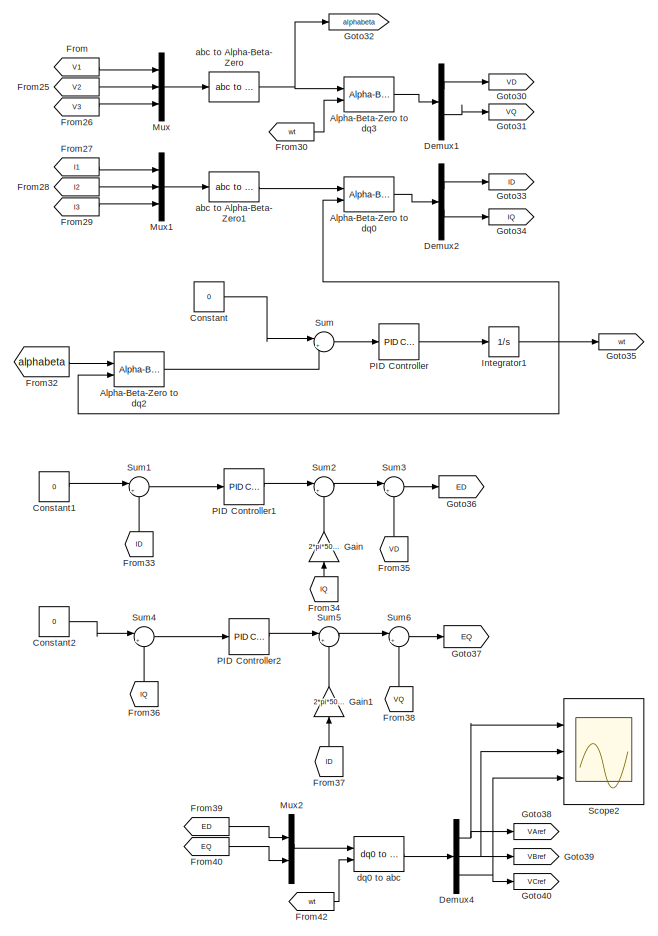
[diagram: root canvas - part 1/2, right side, full height]
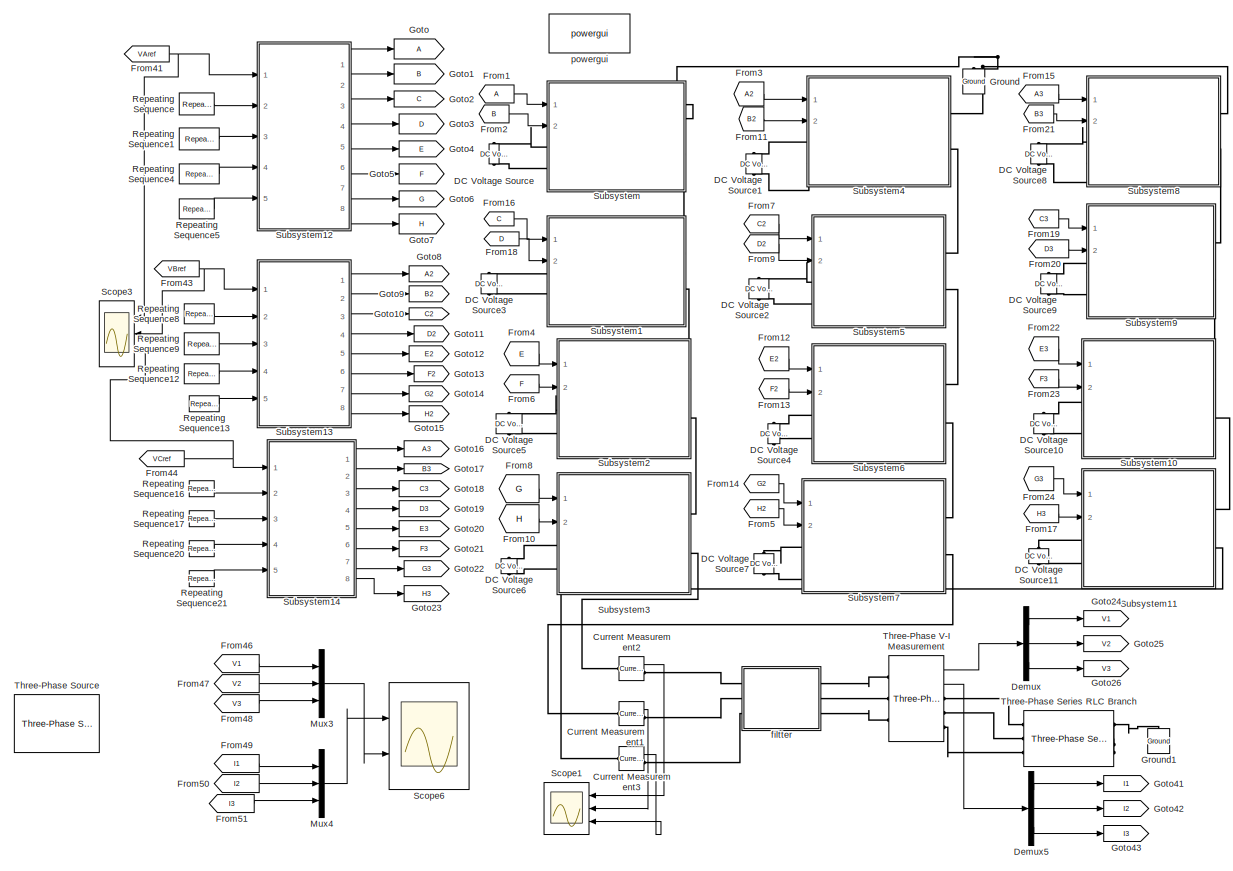
[diagram: root canvas - part 2/2, left side, full height]
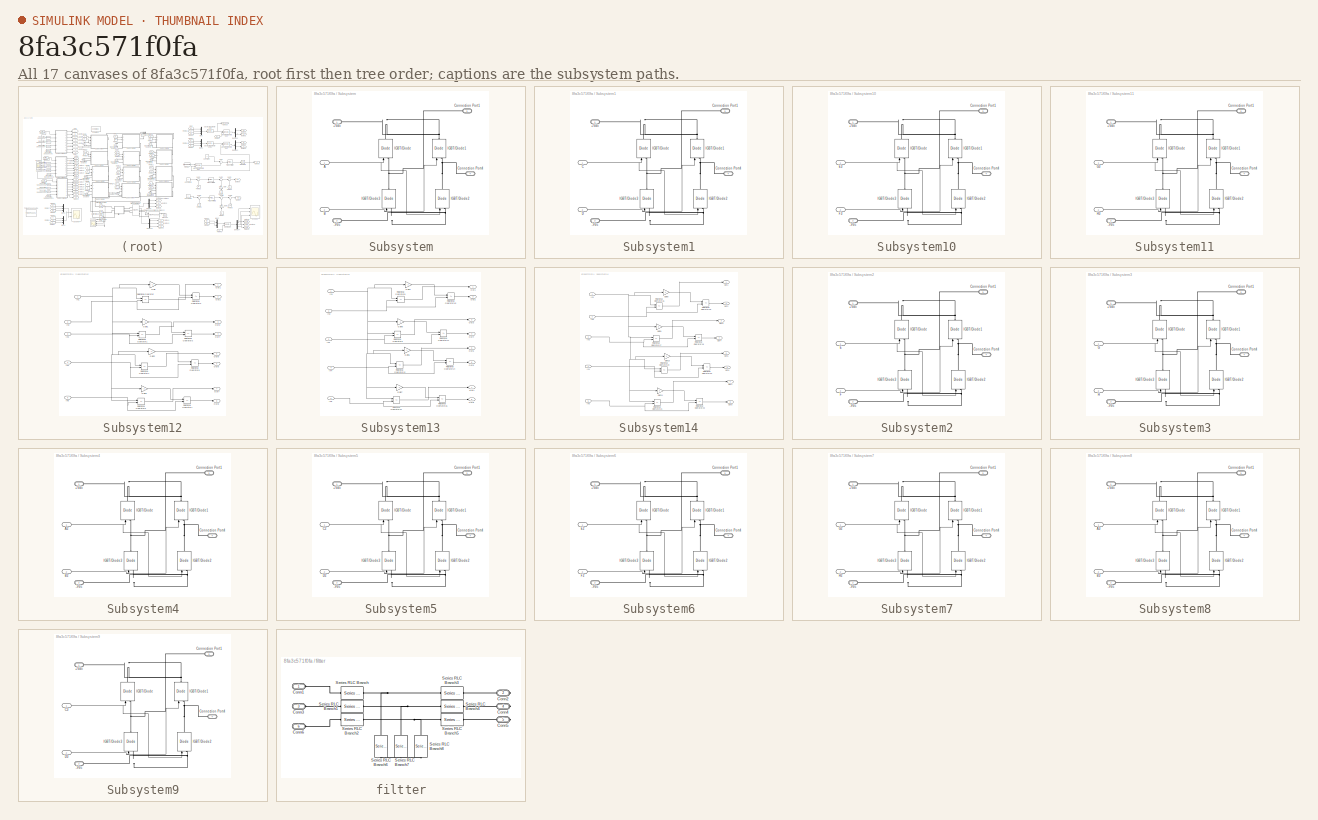
[diagram: thumbnail index - all 17 canvases of the model, root first then tree order]
MODEL slx_8fa3c571f0fa
KIND model
CONFIG AbsTol = auto
CONFIG EnableMultiTasking = off
CONFIG FixedStep = auto
CONFIG MaxStep = auto
CONFIG MinStep = auto
CONFIG RelTol = 1e-3
CONFIG SampleTimeConstraint = Unconstrained
CONFIG Solver = ode4
CONFIG SolverName = ode4
CONFIG StartTime = 0.0
CONFIG StopTime = 1
BLOCK [Reference] Alpha-Beta-Zero to dq0  REF=powerlib_meascontrol/Transformations/Alpha-Beta-Zero
to dq0
  Ports = [2, 1]
  SourceBlock = powerlib_meascontrol/Transformations/Alpha-Beta-Zero\nto dq0
  SourceProductBaseCode = PS
  SourceProductName = Simscape Electrical
  SourceType = Alpha-Beta-Zero to dq0 Transformation
BLOCK [Reference] Alpha-Beta-Zero to dq2  REF=powerlib_meascontrol/Transformations/Alpha-Beta-Zero
to dq0
  Ports = [2, 1]
  SourceBlock = powerlib_meascontrol/Transformations/Alpha-Beta-Zero\nto dq0
  SourceProductBaseCode = PS
  SourceProductName = Simscape Electrical
  SourceType = Alpha-Beta-Zero to dq0 Transformation
BLOCK [Reference] Alpha-Beta-Zero to dq3  REF=powerlib_meascontrol/Transformations/Alpha-Beta-Zero
to dq0
  Ports = [2, 1]
  SourceBlock = powerlib_meascontrol/Transformations/Alpha-Beta-Zero\nto dq0
  SourceProductBaseCode = PS
  SourceProductName = Simscape Electrical
  SourceType = Alpha-Beta-Zero to dq0 Transformation
BLOCK [Constant] Constant
  Value = 0
BLOCK [Constant] Constant1
  Value = 0
BLOCK [Constant] Constant2
  Value = 0
BLOCK [Reference] Current Measurement1  REF=powerlib/Measurements/Current Measurement
  Ports = [0, 1, 0, 0, 0, 1, 1]
  SourceBlock = powerlib/Measurements/Current Measurement
  SourceProductBaseCode = PS
  SourceProductName = Simscape Electrical
  SourceType = Current Measurement
  UserDataPersistent = on
BLOCK [Reference] Current Measurement2  REF=powerlib/Measurements/Current Measurement
  Ports = [0, 1, 0, 0, 0, 1, 1]
  SourceBlock = powerlib/Measurements/Current Measurement
  SourceProductBaseCode = PS
  SourceProductName = Simscape Electrical
  SourceType = Current Measurement
  UserDataPersistent = on
BLOCK [Reference] Current Measurement3  REF=powerlib/Measurements/Current Measurement
  Ports = [0, 1, 0, 0, 0, 1, 1]
  SourceBlock = powerlib/Measurements/Current Measurement
  SourceProductBaseCode = PS
  SourceProductName = Simscape Electrical
  SourceType = Current Measurement
  UserDataPersistent = on
BLOCK [Reference] DC Voltage Source  REF=powerlib/Electrical
Sources/DC Voltage Source
  Ports = [0, 0, 0, 0, 0, 1, 1]
  SourceBlock = powerlib/Electrical\nSources/DC Voltage Source
  SourceProductBaseCode = PS
  SourceProductName = Simscape Electrical
  SourceType = DC Voltage Source
BLOCK [Reference] DC Voltage Source1  REF=powerlib/Electrical
Sources/DC Voltage Source
  Ports = [0, 0, 0, 0, 0, 1, 1]
  SourceBlock = powerlib/Electrical\nSources/DC Voltage Source
  SourceProductBaseCode = PS
  SourceProductName = Simscape Electrical
  SourceType = DC Voltage Source
BLOCK [Reference] DC Voltage Source10  REF=powerlib/Electrical
Sources/DC Voltage Source
  Ports = [0, 0, 0, 0, 0, 1, 1]
  SourceBlock = powerlib/Electrical\nSources/DC Voltage Source
  SourceProductBaseCode = PS
  SourceProductName = Simscape Electrical
  SourceType = DC Voltage Source
BLOCK [Reference] DC Voltage Source11  REF=powerlib/Electrical
Sources/DC Voltage Source
  Ports = [0, 0, 0, 0, 0, 1, 1]
  SourceBlock = powerlib/Electrical\nSources/DC Voltage Source
  SourceProductBaseCode = PS
  SourceProductName = Simscape Electrical
  SourceType = DC Voltage Source
BLOCK [Reference] DC Voltage Source2  REF=powerlib/Electrical
Sources/DC Voltage Source
  Ports = [0, 0, 0, 0, 0, 1, 1]
  SourceBlock = powerlib/Electrical\nSources/DC Voltage Source
  SourceProductBaseCode = PS
  SourceProductName = Simscape Electrical
  SourceType = DC Voltage Source
BLOCK [Reference] DC Voltage Source3  REF=powerlib/Electrical
Sources/DC Voltage Source
  Ports = [0, 0, 0, 0, 0, 1, 1]
  SourceBlock = powerlib/Electrical\nSources/DC Voltage Source
  SourceProductBaseCode = PS
  SourceProductName = Simscape Electrical
  SourceType = DC Voltage Source
BLOCK [Reference] DC Voltage Source4  REF=powerlib/Electrical
Sources/DC Voltage Source
  Ports = [0, 0, 0, 0, 0, 1, 1]
  SourceBlock = powerlib/Electrical\nSources/DC Voltage Source
  SourceProductBaseCode = PS
  SourceProductName = Simscape Electrical
  SourceType = DC Voltage Source
BLOCK [Reference] DC Voltage Source5  REF=powerlib/Electrical
Sources/DC Voltage Source
  Ports = [0, 0, 0, 0, 0, 1, 1]
  SourceBlock = powerlib/Electrical\nSources/DC Voltage Source
  SourceProductBaseCode = PS
  SourceProductName = Simscape Electrical
  SourceType = DC Voltage Source
BLOCK [Reference] DC Voltage Source6  REF=powerlib/Electrical
Sources/DC Voltage Source
  Ports = [0, 0, 0, 0, 0, 1, 1]
  SourceBlock = powerlib/Electrical\nSources/DC Voltage Source
  SourceProductBaseCode = PS
  SourceProductName = Simscape Electrical
  SourceType = DC Voltage Source
BLOCK [Reference] DC Voltage Source7  REF=powerlib/Electrical
Sources/DC Voltage Source
  Ports = [0, 0, 0, 0, 0, 1, 1]
  SourceBlock = powerlib/Electrical\nSources/DC Voltage Source
  SourceProductBaseCode = PS
  SourceProductName = Simscape Electrical
  SourceType = DC Voltage Source
BLOCK [Reference] DC Voltage Source8  REF=powerlib/Electrical
Sources/DC Voltage Source
  Ports = [0, 0, 0, 0, 0, 1, 1]
  SourceBlock = powerlib/Electrical\nSources/DC Voltage Source
  SourceProductBaseCode = PS
  SourceProductName = Simscape Electrical
  SourceType = DC Voltage Source
BLOCK [Reference] DC Voltage Source9  REF=powerlib/Electrical
Sources/DC Voltage Source
  Ports = [0, 0, 0, 0, 0, 1, 1]
  SourceBlock = powerlib/Electrical\nSources/DC Voltage Source
  SourceProductBaseCode = PS
  SourceProductName = Simscape Electrical
  SourceType = DC Voltage Source
BLOCK [Demux] Demux
  DisplayOption = bar
  Outputs = 3
  Ports = [1, 3]
BLOCK [Demux] Demux1
  DisplayOption = bar
  Outputs = 2
  Ports = [1, 2]
BLOCK [Demux] Demux2
  DisplayOption = bar
  Outputs = 2
  Ports = [1, 2]
BLOCK [Demux] Demux4
  DisplayOption = bar
  Outputs = 3
  Ports = [1, 3]
BLOCK [Demux] Demux5
  DisplayOption = bar
  Outputs = 3
  Ports = [1, 3]
BLOCK [From] From
  GotoTag = V1
BLOCK [From] From1
BLOCK [From] From10
  GotoTag = H
BLOCK [From] From11
  GotoTag = B2
BLOCK [From] From12
  GotoTag = E2
BLOCK [From] From13
  GotoTag = F2
BLOCK [From] From14
  GotoTag = G2
BLOCK [From] From15
  GotoTag = A3
BLOCK [From] From16
  GotoTag = C
BLOCK [From] From17
  GotoTag = H3
BLOCK [From] From18
  GotoTag = D
BLOCK [From] From19
  GotoTag = C3
BLOCK [From] From2
  GotoTag = B
BLOCK [From] From20
  GotoTag = D3
BLOCK [From] From21
  GotoTag = B3
BLOCK [From] From22
  GotoTag = E3
BLOCK [From] From23
  GotoTag = F3
BLOCK [From] From24
  GotoTag = G3
BLOCK [From] From25
  GotoTag = V2
BLOCK [From] From26
  GotoTag = V3
BLOCK [From] From27
  GotoTag = I1
BLOCK [From] From28
  GotoTag = I2
BLOCK [From] From29
  GotoTag = I3
BLOCK [From] From3
  GotoTag = A2
BLOCK [From] From30
  GotoTag = wt
BLOCK [From] From32
  GotoTag = alphabeta
BLOCK [From] From33
  GotoTag = ID
BLOCK [From] From34
  GotoTag = IQ
BLOCK [From] From35
  GotoTag = VD
BLOCK [From] From36
  GotoTag = IQ
BLOCK [From] From37
  GotoTag = ID
BLOCK [From] From38
  GotoTag = VQ
BLOCK [From] From39
  GotoTag = ED
BLOCK [From] From4
  GotoTag = E
BLOCK [From] From40
  GotoTag = EQ
BLOCK [From] From41
  GotoTag = VAref
BLOCK [From] From42
  GotoTag = wt
BLOCK [From] From43
  GotoTag = VBref
BLOCK [From] From44
  GotoTag = VCref
BLOCK [From] From46
  GotoTag = V1
BLOCK [From] From47
  GotoTag = V2
BLOCK [From] From48
  GotoTag = V3
BLOCK [From] From49
  GotoTag = I1
BLOCK [From] From5
  GotoTag = H2
BLOCK [From] From50
  GotoTag = I2
BLOCK [From] From51
  GotoTag = I3
BLOCK [From] From6
  GotoTag = F
BLOCK [From] From7
  GotoTag = C2
BLOCK [From] From8
  GotoTag = G
BLOCK [From] From9
  GotoTag = D2
BLOCK [Gain] Gain
  Gain = 2*pi*50*1000e-6
  OutDataTypeStr = Inherit: Inherit via internal rule
  ParamDataTypeStr = Inherit: Inherit via internal rule
  SaturateOnIntegerOverflow = off
BLOCK [Gain] Gain1
  Gain = 2*pi*50*1000e-6
  OutDataTypeStr = Inherit: Inherit via internal rule
  ParamDataTypeStr = Inherit: Inherit via internal rule
  SaturateOnIntegerOverflow = off
BLOCK [Goto] Goto
BLOCK [Goto] Goto1
  GotoTag = B
BLOCK [Goto] Goto10
  GotoTag = C2
BLOCK [Goto] Goto11
  GotoTag = D2
BLOCK [Goto] Goto12
  GotoTag = E2
BLOCK [Goto] Goto13
  GotoTag = F2
BLOCK [Goto] Goto14
  GotoTag = G2
BLOCK [Goto] Goto15
  GotoTag = H2
BLOCK [Goto] Goto16
  GotoTag = A3
BLOCK [Goto] Goto17
  GotoTag = B3
BLOCK [Goto] Goto18
  GotoTag = C3
BLOCK [Goto] Goto19
  GotoTag = D3
BLOCK [Goto] Goto2
  GotoTag = C
BLOCK [Goto] Goto20
  GotoTag = E3
BLOCK [Goto] Goto21
  GotoTag = F3
BLOCK [Goto] Goto22
  GotoTag = G3
BLOCK [Goto] Goto23
  GotoTag = H3
BLOCK [Goto] Goto24
  GotoTag = V1
BLOCK [Goto] Goto25
  GotoTag = V2
BLOCK [Goto] Goto26
  GotoTag = V3
BLOCK [Goto] Goto3
  GotoTag = D
BLOCK [Goto] Goto30
  GotoTag = VD
BLOCK [Goto] Goto31
  GotoTag = VQ
BLOCK [Goto] Goto32
  GotoTag = alphabeta
BLOCK [Goto] Goto33
  GotoTag = ID
BLOCK [Goto] Goto34
  GotoTag = IQ
BLOCK [Goto] Goto35
  GotoTag = wt
BLOCK [Goto] Goto36
  GotoTag = ED
BLOCK [Goto] Goto37
  GotoTag = EQ
BLOCK [Goto] Goto38
  GotoTag = VAref
BLOCK [Goto] Goto39
  GotoTag = VBref
BLOCK [Goto] Goto4
  GotoTag = E
BLOCK [Goto] Goto40
  GotoTag = VCref
BLOCK [Goto] Goto41
  GotoTag = I1
BLOCK [Goto] Goto42
  GotoTag = I2
BLOCK [Goto] Goto43
  GotoTag = I3
BLOCK [Goto] Goto5
  GotoTag = F
BLOCK [Goto] Goto6
  GotoTag = G
BLOCK [Goto] Goto7
  GotoTag = H
BLOCK [Goto] Goto8
  GotoTag = A2
BLOCK [Goto] Goto9
  GotoTag = B2
BLOCK [Reference] Ground  REF=powerlib/Elements/Ground
  Ports = [0, 0, 0, 0, 0, 1]
  SourceBlock = powerlib/Elements/Ground
  SourceProductBaseCode = PS
  SourceProductName = Simscape Electrical
  SourceType = Ground
BLOCK [Reference] Ground1  REF=powerlib/Elements/Ground
  Ports = [0, 0, 0, 0, 0, 1]
  SourceBlock = powerlib/Elements/Ground
  SourceProductBaseCode = PS
  SourceProductName = Simscape Electrical
  SourceType = Ground
BLOCK [Integrator] Integrator1
  Ports = [1, 1]
BLOCK [Mux] Mux
  DisplayOption = bar
  Inputs = 3
  Ports = [3, 1]
BLOCK [Mux] Mux1
  DisplayOption = bar
  Inputs = 3
  Ports = [3, 1]
BLOCK [Mux] Mux2
  DisplayOption = bar
  Inputs = 2
  Ports = [2, 1]
BLOCK [Mux] Mux3
  DisplayOption = bar
  Inputs = 3
  Ports = [3, 1]
BLOCK [Mux] Mux4
  DisplayOption = bar
  Inputs = 3
  Ports = [3, 1]
BLOCK [Reference] PID Controller  REF=simulink/Continuous/PID Controller
  Ports = [1, 1]
  SourceBlock = simulink/Continuous/PID Controller
  SourceProductBaseCode = SL
  SourceProductName = Simulink
  SourceType = PID 1dof
BLOCK [Reference] PID Controller1  REF=simulink/Continuous/PID Controller
  Ports = [1, 1]
  SourceBlock = simulink/Continuous/PID Controller
  SourceProductBaseCode = SL
  SourceProductName = Simulink
  SourceType = PID 1dof
BLOCK [Reference] PID Controller2  REF=simulink/Continuous/PID Controller
  Ports = [1, 1]
  SourceBlock = simulink/Continuous/PID Controller
  SourceProductBaseCode = SL
  SourceProductName = Simulink
  SourceType = PID 1dof
BLOCK [Reference] Repeating Sequence  REF=simulink/Sources/Repeating
Sequence
  Ports = [0, 1]
  SourceBlock = simulink/Sources/Repeating\nSequence
  SourceProductBaseCode = SL
  SourceProductName = Simulink
  SourceType = Repeating table
BLOCK [Reference] Repeating Sequence1  REF=simulink/Sources/Repeating
Sequence
  Ports = [0, 1]
  SourceBlock = simulink/Sources/Repeating\nSequence
  SourceProductBaseCode = SL
  SourceProductName = Simulink
  SourceType = Repeating table
BLOCK [Reference] Repeating Sequence12  REF=simulink/Sources/Repeating
Sequence
  Ports = [0, 1]
  SourceBlock = simulink/Sources/Repeating\nSequence
  SourceProductBaseCode = SL
  SourceProductName = Simulink
  SourceType = Repeating table
BLOCK [Reference] Repeating Sequence13  REF=simulink/Sources/Repeating
Sequence
  Ports = [0, 1]
  SourceBlock = simulink/Sources/Repeating\nSequence
  SourceProductBaseCode = SL
  SourceProductName = Simulink
  SourceType = Repeating table
BLOCK [Reference] Repeating Sequence16  REF=simulink/Sources/Repeating
Sequence
  Ports = [0, 1]
  SourceBlock = simulink/Sources/Repeating\nSequence
  SourceProductBaseCode = SL
  SourceProductName = Simulink
  SourceType = Repeating table
BLOCK [Reference] Repeating Sequence17  REF=simulink/Sources/Repeating
Sequence
  Ports = [0, 1]
  SourceBlock = simulink/Sources/Repeating\nSequence
  SourceProductBaseCode = SL
  SourceProductName = Simulink
  SourceType = Repeating table
BLOCK [Reference] Repeating Sequence20  REF=simulink/Sources/Repeating
Sequence
  Ports = [0, 1]
  SourceBlock = simulink/Sources/Repeating\nSequence
  SourceProductBaseCode = SL
  SourceProductName = Simulink
  SourceType = Repeating table
BLOCK [Reference] Repeating Sequence21  REF=simulink/Sources/Repeating
Sequence
  Ports = [0, 1]
  SourceBlock = simulink/Sources/Repeating\nSequence
  SourceProductBaseCode = SL
  SourceProductName = Simulink
  SourceType = Repeating table
BLOCK [Reference] Repeating Sequence4  REF=simulink/Sources/Repeating
Sequence
  Ports = [0, 1]
  SourceBlock = simulink/Sources/Repeating\nSequence
  SourceProductBaseCode = SL
  SourceProductName = Simulink
  SourceType = Repeating table
BLOCK [Reference] Repeating Sequence5  REF=simulink/Sources/Repeating
Sequence
  Ports = [0, 1]
  SourceBlock = simulink/Sources/Repeating\nSequence
  SourceProductBaseCode = SL
  SourceProductName = Simulink
  SourceType = Repeating table
BLOCK [Reference] Repeating Sequence8  REF=simulink/Sources/Repeating
Sequence
  Ports = [0, 1]
  SourceBlock = simulink/Sources/Repeating\nSequence
  SourceProductBaseCode = SL
  SourceProductName = Simulink
  SourceType = Repeating table
BLOCK [Reference] Repeating Sequence9  REF=simulink/Sources/Repeating
Sequence
  Ports = [0, 1]
  SourceBlock = simulink/Sources/Repeating\nSequence
  SourceProductBaseCode = SL
  SourceProductName = Simulink
  SourceType = Repeating table
BLOCK [Scope] Scope1
  Floating = off
  NumInputPorts = 3
  Ports = [3]
  ScopeSpecificationString = Simulink.scopes.TimeScopeBlockCfg('CurrentConfiguration', extmgr.ConfigurationSet(extmgr.Configuration('Core','General UI',true,'FigureColor',[1 1 1]),extmgr.Configuration('Core','Source UI',true),extmgr.Configuration('Sources','WiredSimulink',true,'DataLoggingVariableName','ScopeData1'),extmgr.Configuration('Visuals','Time Domain',true,'SerializedDisplays',{struct('MinYLimReal','-48364.19403','Ma...<+2422ch>
BLOCK [Scope] Scope2
  Floating = off
  NumInputPorts = 3
  Ports = [3]
  ScopeSpecificationString = Simulink.scopes.TimeScopeBlockCfg('CurrentConfiguration', extmgr.ConfigurationSet(extmgr.Configuration('Core','General UI',true,'FigureColor',[1 1 1]),extmgr.Configuration('Core','Source UI',true),extmgr.Configuration('Sources','WiredSimulink',true,'DataLoggingVariableName','ScopeData2'),extmgr.Configuration('Visuals','Time Domain',true,'SerializedDisplays',{struct('MinYLimReal','-208584.86196','M...<+2382ch>
BLOCK [Scope] Scope3
  Floating = off
  NumInputPorts = 3
  Ports = [3]
  ScopeSpecificationString = Simulink.scopes.TimeScopeBlockCfg('CurrentConfiguration', extmgr.ConfigurationSet(extmgr.Configuration('Core','General UI',true,'FigureColor',[1 1 1]),extmgr.Configuration('Core','Source UI',true),extmgr.Configuration('Sources','WiredSimulink',true,'DataLoggingVariableName','ScopeData3'),extmgr.Configuration('Visuals','Time Domain',true,'SerializedDisplays',{struct('MinYLimReal','-5.00000','MaxYLi...<+2370ch>
BLOCK [Scope] Scope6
  Floating = off
  NumInputPorts = 2
  Ports = [2]
  ScopeSpecificationString = Simulink.scopes.TimeScopeBlockCfg('CurrentConfiguration', extmgr.ConfigurationSet(extmgr.Configuration('Core','General UI',true,'FigureColor',[1 1 1]),extmgr.Configuration('Core','Source UI',true),extmgr.Configuration('Sources','WiredSimulink',true),extmgr.Configuration('Visuals','Time Domain',true,'SerializedDisplays',{struct('MinYLimReal','-2334.94737','MaxYLimReal','2350.72929','YLabelReal','',...<+2391ch>
BLOCK [SubSystem] Subsystem
  Ports = [2, 0, 0, 0, 0, 2, 2]
  RequestExecContextInheritance = off
BLOCK [PMIOPort] Subsystem/+Vdc
  Side = Left
BLOCK [PMIOPort] Subsystem/-Vdc
  Port = 2
  Side = Left
BLOCK [Inport] Subsystem/A
  IconDisplay = Port number
BLOCK [Inport] Subsystem/B
  IconDisplay = Port number
  Port = 2
BLOCK [PMIOPort] Subsystem/Connection Port1
  Port = 3
  Side = Right
BLOCK [PMIOPort] Subsystem/Connection Port4
  Port = 4
  Side = Right
BLOCK [Reference] Subsystem/IGBT//Diode  REF=powerlib/Power
Electronics/IGBT//Diode
  Ports = [1, 0, 0, 0, 0, 1, 1]
  SourceBlock = powerlib/Power\nElectronics/IGBT//Diode
  SourceProductBaseCode = PS
  SourceProductName = Simscape Electrical
  SourceType = IGBT/Diode
BLOCK [Reference] Subsystem/IGBT//Diode1  REF=powerlib/Power
Electronics/IGBT//Diode
  Ports = [1, 0, 0, 0, 0, 1, 1]
  SourceBlock = powerlib/Power\nElectronics/IGBT//Diode
  SourceProductBaseCode = PS
  SourceProductName = Simscape Electrical
  SourceType = IGBT/Diode
BLOCK [Reference] Subsystem/IGBT//Diode2  REF=powerlib/Power
Electronics/IGBT//Diode
  Ports = [1, 0, 0, 0, 0, 1, 1]
  SourceBlock = powerlib/Power\nElectronics/IGBT//Diode
  SourceProductBaseCode = PS
  SourceProductName = Simscape Electrical
  SourceType = IGBT/Diode
BLOCK [Reference] Subsystem/IGBT//Diode3  REF=powerlib/Power
Electronics/IGBT//Diode
  Ports = [1, 0, 0, 0, 0, 1, 1]
  SourceBlock = powerlib/Power\nElectronics/IGBT//Diode
  SourceProductBaseCode = PS
  SourceProductName = Simscape Electrical
  SourceType = IGBT/Diode
BLOCK [SubSystem] Subsystem1
  Ports = [2, 0, 0, 0, 0, 2, 2]
  RequestExecContextInheritance = off
BLOCK [PMIOPort] Subsystem1/+Vdc
  Side = Left
BLOCK [PMIOPort] Subsystem1/-Vdc
  Port = 2
  Side = Left
BLOCK [Inport] Subsystem1/C
  IconDisplay = Port number
BLOCK [PMIOPort] Subsystem1/Connection Port1
  Port = 3
  Side = Right
BLOCK [PMIOPort] Subsystem1/Connection Port4
  Port = 4
  Side = Right
BLOCK [Inport] Subsystem1/D 
  IconDisplay = Port number
  Port = 2
BLOCK [Reference] Subsystem1/IGBT//Diode  REF=powerlib/Power
Electronics/IGBT//Diode
  Ports = [1, 0, 0, 0, 0, 1, 1]
  SourceBlock = powerlib/Power\nElectronics/IGBT//Diode
  SourceProductBaseCode = PS
  SourceProductName = Simscape Electrical
  SourceType = IGBT/Diode
BLOCK [Reference] Subsystem1/IGBT//Diode1  REF=powerlib/Power
Electronics/IGBT//Diode
  Ports = [1, 0, 0, 0, 0, 1, 1]
  SourceBlock = powerlib/Power\nElectronics/IGBT//Diode
  SourceProductBaseCode = PS
  SourceProductName = Simscape Electrical
  SourceType = IGBT/Diode
BLOCK [Reference] Subsystem1/IGBT//Diode2  REF=powerlib/Power
Electronics/IGBT//Diode
  Ports = [1, 0, 0, 0, 0, 1, 1]
  SourceBlock = powerlib/Power\nElectronics/IGBT//Diode
  SourceProductBaseCode = PS
  SourceProductName = Simscape Electrical
  SourceType = IGBT/Diode
BLOCK [Reference] Subsystem1/IGBT//Diode3  REF=powerlib/Power
Electronics/IGBT//Diode
  Ports = [1, 0, 0, 0, 0, 1, 1]
  SourceBlock = powerlib/Power\nElectronics/IGBT//Diode
  SourceProductBaseCode = PS
  SourceProductName = Simscape Electrical
  SourceType = IGBT/Diode
BLOCK [SubSystem] Subsystem10
  Ports = [2, 0, 0, 0, 0, 2, 2]
  RequestExecContextInheritance = off
BLOCK [PMIOPort] Subsystem10/+Vdc
  Side = Left
BLOCK [PMIOPort] Subsystem10/-Vdc
  Port = 2
  Side = Left
BLOCK [PMIOPort] Subsystem10/Connection Port1
  Port = 3
  Side = Right
BLOCK [PMIOPort] Subsystem10/Connection Port4
  Port = 4
  Side = Right
BLOCK [Inport] Subsystem10/E3
  IconDisplay = Port number
BLOCK [Inport] Subsystem10/F3
  IconDisplay = Port number
  Port = 2
BLOCK [Reference] Subsystem10/IGBT//Diode  REF=powerlib/Power
Electronics/IGBT//Diode
  Ports = [1, 0, 0, 0, 0, 1, 1]
  SourceBlock = powerlib/Power\nElectronics/IGBT//Diode
  SourceProductBaseCode = PS
  SourceProductName = Simscape Electrical
  SourceType = IGBT/Diode
BLOCK [Reference] Subsystem10/IGBT//Diode1  REF=powerlib/Power
Electronics/IGBT//Diode
  Ports = [1, 0, 0, 0, 0, 1, 1]
  SourceBlock = powerlib/Power\nElectronics/IGBT//Diode
  SourceProductBaseCode = PS
  SourceProductName = Simscape Electrical
  SourceType = IGBT/Diode
BLOCK [Reference] Subsystem10/IGBT//Diode2  REF=powerlib/Power
Electronics/IGBT//Diode
  Ports = [1, 0, 0, 0, 0, 1, 1]
  SourceBlock = powerlib/Power\nElectronics/IGBT//Diode
  SourceProductBaseCode = PS
  SourceProductName = Simscape Electrical
  SourceType = IGBT/Diode
BLOCK [Reference] Subsystem10/IGBT//Diode3  REF=powerlib/Power
Electronics/IGBT//Diode
  Ports = [1, 0, 0, 0, 0, 1, 1]
  SourceBlock = powerlib/Power\nElectronics/IGBT//Diode
  SourceProductBaseCode = PS
  SourceProductName = Simscape Electrical
  SourceType = IGBT/Diode
BLOCK [SubSystem] Subsystem11
  Ports = [2, 0, 0, 0, 0, 2, 2]
  RequestExecContextInheritance = off
BLOCK [PMIOPort] Subsystem11/+Vdc
  Side = Left
BLOCK [PMIOPort] Subsystem11/-Vdc
  Port = 2
  Side = Left
BLOCK [PMIOPort] Subsystem11/Connection Port1
  Port = 3
  Side = Right
BLOCK [PMIOPort] Subsystem11/Connection Port4
  Port = 4
  Side = Right
BLOCK [Inport] Subsystem11/G3
  IconDisplay = Port number
BLOCK [Inport] Subsystem11/H3 
  IconDisplay = Port number
  Port = 2
BLOCK [Reference] Subsystem11/IGBT//Diode  REF=powerlib/Power
Electronics/IGBT//Diode
  Ports = [1, 0, 0, 0, 0, 1, 1]
  SourceBlock = powerlib/Power\nElectronics/IGBT//Diode
  SourceProductBaseCode = PS
  SourceProductName = Simscape Electrical
  SourceType = IGBT/Diode
BLOCK [Reference] Subsystem11/IGBT//Diode1  REF=powerlib/Power
Electronics/IGBT//Diode
  Ports = [1, 0, 0, 0, 0, 1, 1]
  SourceBlock = powerlib/Power\nElectronics/IGBT//Diode
  SourceProductBaseCode = PS
  SourceProductName = Simscape Electrical
  SourceType = IGBT/Diode
BLOCK [Reference] Subsystem11/IGBT//Diode2  REF=powerlib/Power
Electronics/IGBT//Diode
  Ports = [1, 0, 0, 0, 0, 1, 1]
  SourceBlock = powerlib/Power\nElectronics/IGBT//Diode
  SourceProductBaseCode = PS
  SourceProductName = Simscape Electrical
  SourceType = IGBT/Diode
BLOCK [Reference] Subsystem11/IGBT//Diode3  REF=powerlib/Power
Electronics/IGBT//Diode
  Ports = [1, 0, 0, 0, 0, 1, 1]
  SourceBlock = powerlib/Power\nElectronics/IGBT//Diode
  SourceProductBaseCode = PS
  SourceProductName = Simscape Electrical
  SourceType = IGBT/Diode
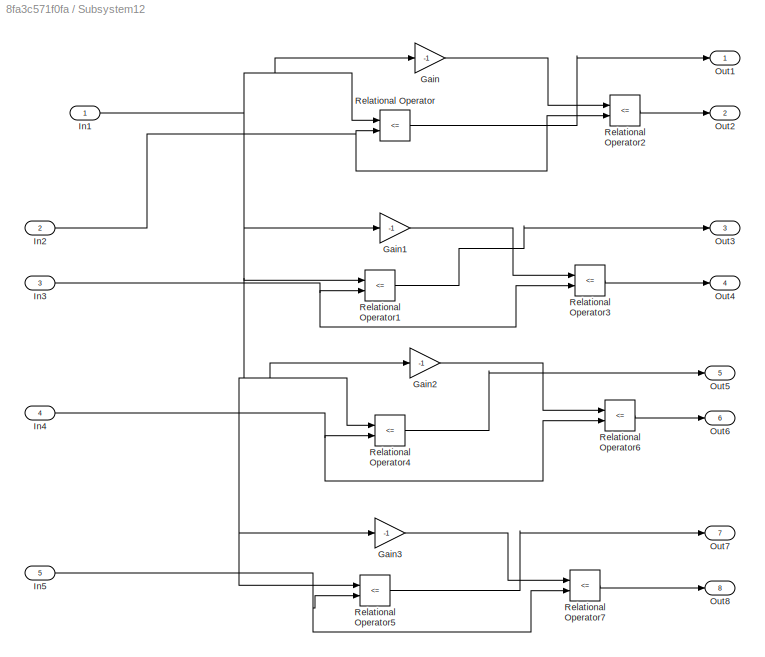
BLOCK [SubSystem] Subsystem12
  Ports = [5, 8]
  RequestExecContextInheritance = off
BLOCK [Gain] Subsystem12/Gain
  Gain = -1
  OutDataTypeStr = Inherit: Inherit via internal rule
  ParamDataTypeStr = Inherit: Inherit via internal rule
  SaturateOnIntegerOverflow = off
BLOCK [Gain] Subsystem12/Gain1
  Gain = -1
  OutDataTypeStr = Inherit: Inherit via internal rule
  ParamDataTypeStr = Inherit: Inherit via internal rule
  SaturateOnIntegerOverflow = off
BLOCK [Gain] Subsystem12/Gain2
  Gain = -1
  OutDataTypeStr = Inherit: Inherit via internal rule
  ParamDataTypeStr = Inherit: Inherit via internal rule
  SaturateOnIntegerOverflow = off
BLOCK [Gain] Subsystem12/Gain3
  Gain = -1
  OutDataTypeStr = Inherit: Inherit via internal rule
  ParamDataTypeStr = Inherit: Inherit via internal rule
  SaturateOnIntegerOverflow = off
BLOCK [Inport] Subsystem12/In1
  IconDisplay = Port number
BLOCK [Inport] Subsystem12/In2
  IconDisplay = Port number
  Port = 2
BLOCK [Inport] Subsystem12/In3
  IconDisplay = Port number
  Port = 3
BLOCK [Inport] Subsystem12/In4
  IconDisplay = Port number
  Port = 4
BLOCK [Inport] Subsystem12/In5
  IconDisplay = Port number
  Port = 5
BLOCK [Outport] Subsystem12/Out1
  IconDisplay = Port number
BLOCK [Outport] Subsystem12/Out2
  IconDisplay = Port number
  Port = 2
BLOCK [Outport] Subsystem12/Out3
  IconDisplay = Port number
  Port = 3
BLOCK [Outport] Subsystem12/Out4
  IconDisplay = Port number
  Port = 4
BLOCK [Outport] Subsystem12/Out5
  IconDisplay = Port number
  Port = 5
BLOCK [Outport] Subsystem12/Out6
  IconDisplay = Port number
  Port = 6
BLOCK [Outport] Subsystem12/Out7
  IconDisplay = Port number
  Port = 7
BLOCK [Outport] Subsystem12/Out8
  IconDisplay = Port number
  Port = 8
BLOCK [RelationalOperator] Subsystem12/Relational Operator
  InputSameDT = off
  Operator = <=
  OutDataTypeStr = boolean
  Ports = [2, 1]
  RndMeth = Simplest
BLOCK [RelationalOperator] Subsystem12/Relational Operator1
  InputSameDT = off
  Operator = <=
  OutDataTypeStr = boolean
  Ports = [2, 1]
  RndMeth = Simplest
BLOCK [RelationalOperator] Subsystem12/Relational Operator2
  InputSameDT = off
  Operator = <=
  OutDataTypeStr = boolean
  Ports = [2, 1]
  RndMeth = Simplest
BLOCK [RelationalOperator] Subsystem12/Relational Operator3
  InputSameDT = off
  Operator = <=
  OutDataTypeStr = boolean
  Ports = [2, 1]
  RndMeth = Simplest
BLOCK [RelationalOperator] Subsystem12/Relational Operator4
  InputSameDT = off
  Operator = <=
  OutDataTypeStr = boolean
  Ports = [2, 1]
  RndMeth = Simplest
BLOCK [RelationalOperator] Subsystem12/Relational Operator5
  InputSameDT = off
  Operator = <=
  OutDataTypeStr = boolean
  Ports = [2, 1]
  RndMeth = Simplest
BLOCK [RelationalOperator] Subsystem12/Relational Operator6
  InputSameDT = off
  Operator = <=
  OutDataTypeStr = boolean
  Ports = [2, 1]
  RndMeth = Simplest
BLOCK [RelationalOperator] Subsystem12/Relational Operator7
  InputSameDT = off
  Operator = <=
  OutDataTypeStr = boolean
  Ports = [2, 1]
  RndMeth = Simplest
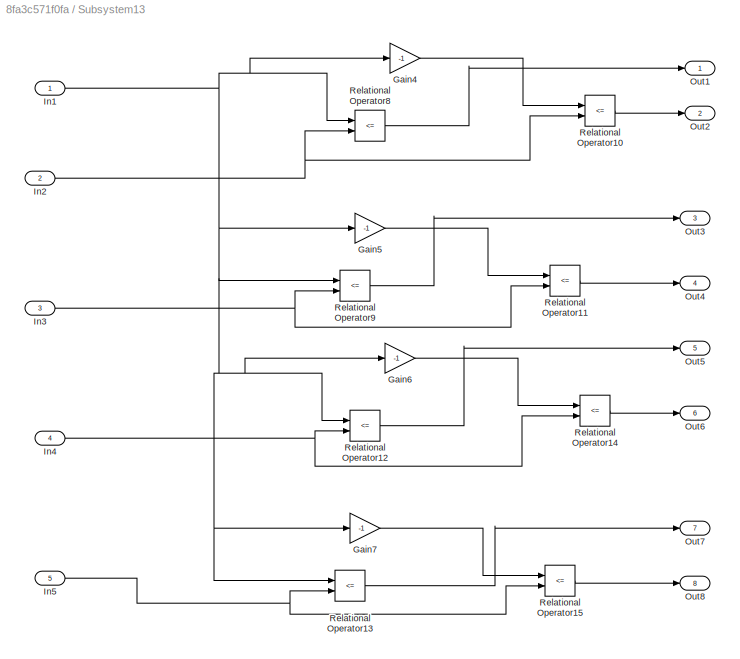
BLOCK [SubSystem] Subsystem13
  Ports = [5, 8]
  RequestExecContextInheritance = off
BLOCK [Gain] Subsystem13/Gain4
  Gain = -1
  OutDataTypeStr = Inherit: Inherit via internal rule
  ParamDataTypeStr = Inherit: Inherit via internal rule
  SaturateOnIntegerOverflow = off
BLOCK [Gain] Subsystem13/Gain5
  Gain = -1
  OutDataTypeStr = Inherit: Inherit via internal rule
  ParamDataTypeStr = Inherit: Inherit via internal rule
  SaturateOnIntegerOverflow = off
BLOCK [Gain] Subsystem13/Gain6
  Gain = -1
  OutDataTypeStr = Inherit: Inherit via internal rule
  ParamDataTypeStr = Inherit: Inherit via internal rule
  SaturateOnIntegerOverflow = off
BLOCK [Gain] Subsystem13/Gain7
  Gain = -1
  OutDataTypeStr = Inherit: Inherit via internal rule
  ParamDataTypeStr = Inherit: Inherit via internal rule
  SaturateOnIntegerOverflow = off
BLOCK [Inport] Subsystem13/In1
  IconDisplay = Port number
BLOCK [Inport] Subsystem13/In2
  IconDisplay = Port number
  Port = 2
BLOCK [Inport] Subsystem13/In3
  IconDisplay = Port number
  Port = 3
BLOCK [Inport] Subsystem13/In4
  IconDisplay = Port number
  Port = 4
BLOCK [Inport] Subsystem13/In5
  IconDisplay = Port number
  Port = 5
BLOCK [Outport] Subsystem13/Out1
  IconDisplay = Port number
BLOCK [Outport] Subsystem13/Out2
  IconDisplay = Port number
  Port = 2
BLOCK [Outport] Subsystem13/Out3
  IconDisplay = Port number
  Port = 3
BLOCK [Outport] Subsystem13/Out4
  IconDisplay = Port number
  Port = 4
BLOCK [Outport] Subsystem13/Out5
  IconDisplay = Port number
  Port = 5
BLOCK [Outport] Subsystem13/Out6
  IconDisplay = Port number
  Port = 6
BLOCK [Outport] Subsystem13/Out7
  IconDisplay = Port number
  Port = 7
BLOCK [Outport] Subsystem13/Out8
  IconDisplay = Port number
  Port = 8
BLOCK [RelationalOperator] Subsystem13/Relational Operator10
  InputSameDT = off
  Operator = <=
  OutDataTypeStr = boolean
  Ports = [2, 1]
  RndMeth = Simplest
BLOCK [RelationalOperator] Subsystem13/Relational Operator11
  InputSameDT = off
  Operator = <=
  OutDataTypeStr = boolean
  Ports = [2, 1]
  RndMeth = Simplest
BLOCK [RelationalOperator] Subsystem13/Relational Operator12
  InputSameDT = off
  Operator = <=
  OutDataTypeStr = boolean
  Ports = [2, 1]
  RndMeth = Simplest
BLOCK [RelationalOperator] Subsystem13/Relational Operator13
  InputSameDT = off
  Operator = <=
  OutDataTypeStr = boolean
  Ports = [2, 1]
  RndMeth = Simplest
BLOCK [RelationalOperator] Subsystem13/Relational Operator14
  InputSameDT = off
  Operator = <=
  OutDataTypeStr = boolean
  Ports = [2, 1]
  RndMeth = Simplest
BLOCK [RelationalOperator] Subsystem13/Relational Operator15
  InputSameDT = off
  Operator = <=
  OutDataTypeStr = boolean
  Ports = [2, 1]
  RndMeth = Simplest
BLOCK [RelationalOperator] Subsystem13/Relational Operator8
  InputSameDT = off
  Operator = <=
  OutDataTypeStr = boolean
  Ports = [2, 1]
  RndMeth = Simplest
BLOCK [RelationalOperator] Subsystem13/Relational Operator9
  InputSameDT = off
  Operator = <=
  OutDataTypeStr = boolean
  Ports = [2, 1]
  RndMeth = Simplest
BLOCK [SubSystem] Subsystem14
  Ports = [5, 8]
  RequestExecContextInheritance = off
BLOCK [Gain] Subsystem14/Gain10
  Gain = -1
  OutDataTypeStr = Inherit: Inherit via internal rule
  ParamDataTypeStr = Inherit: Inherit via internal rule
  SaturateOnIntegerOverflow = off
BLOCK [Gain] Subsystem14/Gain11
  Gain = -1
  OutDataTypeStr = Inherit: Inherit via internal rule
  ParamDataTypeStr = Inherit: Inherit via internal rule
  SaturateOnIntegerOverflow = off
BLOCK [Gain] Subsystem14/Gain8
  Gain = -1
  OutDataTypeStr = Inherit: Inherit via internal rule
  ParamDataTypeStr = Inherit: Inherit via internal rule
  SaturateOnIntegerOverflow = off
BLOCK [Gain] Subsystem14/Gain9
  Gain = -1
  OutDataTypeStr = Inherit: Inherit via internal rule
  ParamDataTypeStr = Inherit: Inherit via internal rule
  SaturateOnIntegerOverflow = off
BLOCK [Inport] Subsystem14/In1
  IconDisplay = Port number
BLOCK [Inport] Subsystem14/In2
  IconDisplay = Port number
  Port = 2
BLOCK [Inport] Subsystem14/In3
  IconDisplay = Port number
  Port = 3
BLOCK [Inport] Subsystem14/In4
  IconDisplay = Port number
  Port = 4
BLOCK [Inport] Subsystem14/In5
  IconDisplay = Port number
  Port = 5
BLOCK [Outport] Subsystem14/Out1
  IconDisplay = Port number
BLOCK [Outport] Subsystem14/Out2
  IconDisplay = Port number
  Port = 2
BLOCK [Outport] Subsystem14/Out3
  IconDisplay = Port number
  Port = 3
BLOCK [Outport] Subsystem14/Out4
  IconDisplay = Port number
  Port = 4
BLOCK [Outport] Subsystem14/Out5
  IconDisplay = Port number
  Port = 5
BLOCK [Outport] Subsystem14/Out6
  IconDisplay = Port number
  Port = 6
BLOCK [Outport] Subsystem14/Out7
  IconDisplay = Port number
  Port = 7
BLOCK [Outport] Subsystem14/Out8
  IconDisplay = Port number
  Port = 8
BLOCK [RelationalOperator] Subsystem14/Relational Operator16
  InputSameDT = off
  Operator = <=
  OutDataTypeStr = boolean
  Ports = [2, 1]
  RndMeth = Simplest
BLOCK [RelationalOperator] Subsystem14/Relational Operator17
  InputSameDT = off
  Operator = <=
  OutDataTypeStr = boolean
  Ports = [2, 1]
  RndMeth = Simplest
BLOCK [RelationalOperator] Subsystem14/Relational Operator18
  InputSameDT = off
  Operator = <=
  OutDataTypeStr = boolean
  Ports = [2, 1]
  RndMeth = Simplest
BLOCK [RelationalOperator] Subsystem14/Relational Operator19
  InputSameDT = off
  Operator = <=
  OutDataTypeStr = boolean
  Ports = [2, 1]
  RndMeth = Simplest
BLOCK [RelationalOperator] Subsystem14/Relational Operator20
  InputSameDT = off
  Operator = <=
  OutDataTypeStr = boolean
  Ports = [2, 1]
  RndMeth = Simplest
BLOCK [RelationalOperator] Subsystem14/Relational Operator21
  InputSameDT = off
  Operator = <=
  OutDataTypeStr = boolean
  Ports = [2, 1]
  RndMeth = Simplest
BLOCK [RelationalOperator] Subsystem14/Relational Operator22
  InputSameDT = off
  Operator = <=
  OutDataTypeStr = boolean
  Ports = [2, 1]
  RndMeth = Simplest
BLOCK [RelationalOperator] Subsystem14/Relational Operator23
  InputSameDT = off
  Operator = <=
  OutDataTypeStr = boolean
  Ports = [2, 1]
  RndMeth = Simplest
BLOCK [SubSystem] Subsystem2
  Ports = [2, 0, 0, 0, 0, 2, 2]
  RequestExecContextInheritance = off
BLOCK [PMIOPort] Subsystem2/+Vdc
  Side = Left
BLOCK [PMIOPort] Subsystem2/-Vdc
  Port = 2
  Side = Left
BLOCK [PMIOPort] Subsystem2/Connection Port1
  Port = 3
  Side = Right
BLOCK [PMIOPort] Subsystem2/Connection Port4
  Port = 4
  Side = Right
BLOCK [Inport] Subsystem2/E
  IconDisplay = Port number
BLOCK [Inport] Subsystem2/F
  IconDisplay = Port number
  Port = 2
BLOCK [Reference] Subsystem2/IGBT//Diode  REF=powerlib/Power
Electronics/IGBT//Diode
  Ports = [1, 0, 0, 0, 0, 1, 1]
  SourceBlock = powerlib/Power\nElectronics/IGBT//Diode
  SourceProductBaseCode = PS
  SourceProductName = Simscape Electrical
  SourceType = IGBT/Diode
BLOCK [Reference] Subsystem2/IGBT//Diode1  REF=powerlib/Power
Electronics/IGBT//Diode
  Ports = [1, 0, 0, 0, 0, 1, 1]
  SourceBlock = powerlib/Power\nElectronics/IGBT//Diode
  SourceProductBaseCode = PS
  SourceProductName = Simscape Electrical
  SourceType = IGBT/Diode
BLOCK [Reference] Subsystem2/IGBT//Diode2  REF=powerlib/Power
Electronics/IGBT//Diode
  Ports = [1, 0, 0, 0, 0, 1, 1]
  SourceBlock = powerlib/Power\nElectronics/IGBT//Diode
  SourceProductBaseCode = PS
  SourceProductName = Simscape Electrical
  SourceType = IGBT/Diode
BLOCK [Reference] Subsystem2/IGBT//Diode3  REF=powerlib/Power
Electronics/IGBT//Diode
  Ports = [1, 0, 0, 0, 0, 1, 1]
  SourceBlock = powerlib/Power\nElectronics/IGBT//Diode
  SourceProductBaseCode = PS
  SourceProductName = Simscape Electrical
  SourceType = IGBT/Diode
BLOCK [SubSystem] Subsystem3
  Ports = [2, 0, 0, 0, 0, 2, 2]
  RequestExecContextInheritance = off
BLOCK [PMIOPort] Subsystem3/+Vdc
  Side = Left
BLOCK [PMIOPort] Subsystem3/-Vdc
  Port = 2
  Side = Left
BLOCK [PMIOPort] Subsystem3/Connection Port1
  Port = 3
  Side = Right
BLOCK [PMIOPort] Subsystem3/Connection Port4
  Port = 4
  Side = Right
BLOCK [Inport] Subsystem3/G
  IconDisplay = Port number
BLOCK [Inport] Subsystem3/H 
  IconDisplay = Port number
  Port = 2
BLOCK [Reference] Subsystem3/IGBT//Diode  REF=powerlib/Power
Electronics/IGBT//Diode
  Ports = [1, 0, 0, 0, 0, 1, 1]
  SourceBlock = powerlib/Power\nElectronics/IGBT//Diode
  SourceProductBaseCode = PS
  SourceProductName = Simscape Electrical
  SourceType = IGBT/Diode
BLOCK [Reference] Subsystem3/IGBT//Diode1  REF=powerlib/Power
Electronics/IGBT//Diode
  Ports = [1, 0, 0, 0, 0, 1, 1]
  SourceBlock = powerlib/Power\nElectronics/IGBT//Diode
  SourceProductBaseCode = PS
  SourceProductName = Simscape Electrical
  SourceType = IGBT/Diode
BLOCK [Reference] Subsystem3/IGBT//Diode2  REF=powerlib/Power
Electronics/IGBT//Diode
  Ports = [1, 0, 0, 0, 0, 1, 1]
  SourceBlock = powerlib/Power\nElectronics/IGBT//Diode
  SourceProductBaseCode = PS
  SourceProductName = Simscape Electrical
  SourceType = IGBT/Diode
BLOCK [Reference] Subsystem3/IGBT//Diode3  REF=powerlib/Power
Electronics/IGBT//Diode
  Ports = [1, 0, 0, 0, 0, 1, 1]
  SourceBlock = powerlib/Power\nElectronics/IGBT//Diode
  SourceProductBaseCode = PS
  SourceProductName = Simscape Electrical
  SourceType = IGBT/Diode
BLOCK [SubSystem] Subsystem4
  Ports = [2, 0, 0, 0, 0, 2, 2]
  RequestExecContextInheritance = off
BLOCK [PMIOPort] Subsystem4/+Vdc
  Side = Left
BLOCK [PMIOPort] Subsystem4/-Vdc
  Port = 2
  Side = Left
BLOCK [Inport] Subsystem4/A2 
  IconDisplay = Port number
BLOCK [Inport] Subsystem4/B2 
  IconDisplay = Port number
  Port = 2
BLOCK [PMIOPort] Subsystem4/Connection Port1
  Port = 3
  Side = Right
BLOCK [PMIOPort] Subsystem4/Connection Port4
  Port = 4
  Side = Right
BLOCK [Reference] Subsystem4/IGBT//Diode  REF=powerlib/Power
Electronics/IGBT//Diode
  Ports = [1, 0, 0, 0, 0, 1, 1]
  SourceBlock = powerlib/Power\nElectronics/IGBT//Diode
  SourceProductBaseCode = PS
  SourceProductName = Simscape Electrical
  SourceType = IGBT/Diode
BLOCK [Reference] Subsystem4/IGBT//Diode1  REF=powerlib/Power
Electronics/IGBT//Diode
  Ports = [1, 0, 0, 0, 0, 1, 1]
  SourceBlock = powerlib/Power\nElectronics/IGBT//Diode
  SourceProductBaseCode = PS
  SourceProductName = Simscape Electrical
  SourceType = IGBT/Diode
BLOCK [Reference] Subsystem4/IGBT//Diode2  REF=powerlib/Power
Electronics/IGBT//Diode
  Ports = [1, 0, 0, 0, 0, 1, 1]
  SourceBlock = powerlib/Power\nElectronics/IGBT//Diode
  SourceProductBaseCode = PS
  SourceProductName = Simscape Electrical
  SourceType = IGBT/Diode
BLOCK [Reference] Subsystem4/IGBT//Diode3  REF=powerlib/Power
Electronics/IGBT//Diode
  Ports = [1, 0, 0, 0, 0, 1, 1]
  SourceBlock = powerlib/Power\nElectronics/IGBT//Diode
  SourceProductBaseCode = PS
  SourceProductName = Simscape Electrical
  SourceType = IGBT/Diode
BLOCK [SubSystem] Subsystem5
  Ports = [2, 0, 0, 0, 0, 2, 2]
  RequestExecContextInheritance = off
BLOCK [PMIOPort] Subsystem5/+Vdc
  Side = Left
BLOCK [PMIOPort] Subsystem5/-Vdc
  Port = 2
  Side = Left
BLOCK [Inport] Subsystem5/C2
  IconDisplay = Port number
BLOCK [PMIOPort] Subsystem5/Connection Port1
  Port = 3
  Side = Right
BLOCK [PMIOPort] Subsystem5/Connection Port4
  Port = 4
  Side = Right
BLOCK [Inport] Subsystem5/D2 
  IconDisplay = Port number
  Port = 2
BLOCK [Reference] Subsystem5/IGBT//Diode  REF=powerlib/Power
Electronics/IGBT//Diode
  Ports = [1, 0, 0, 0, 0, 1, 1]
  SourceBlock = powerlib/Power\nElectronics/IGBT//Diode
  SourceProductBaseCode = PS
  SourceProductName = Simscape Electrical
  SourceType = IGBT/Diode
BLOCK [Reference] Subsystem5/IGBT//Diode1  REF=powerlib/Power
Electronics/IGBT//Diode
  Ports = [1, 0, 0, 0, 0, 1, 1]
  SourceBlock = powerlib/Power\nElectronics/IGBT//Diode
  SourceProductBaseCode = PS
  SourceProductName = Simscape Electrical
  SourceType = IGBT/Diode
BLOCK [Reference] Subsystem5/IGBT//Diode2  REF=powerlib/Power
Electronics/IGBT//Diode
  Ports = [1, 0, 0, 0, 0, 1, 1]
  SourceBlock = powerlib/Power\nElectronics/IGBT//Diode
  SourceProductBaseCode = PS
  SourceProductName = Simscape Electrical
  SourceType = IGBT/Diode
BLOCK [Reference] Subsystem5/IGBT//Diode3  REF=powerlib/Power
Electronics/IGBT//Diode
  Ports = [1, 0, 0, 0, 0, 1, 1]
  SourceBlock = powerlib/Power\nElectronics/IGBT//Diode
  SourceProductBaseCode = PS
  SourceProductName = Simscape Electrical
  SourceType = IGBT/Diode
BLOCK [SubSystem] Subsystem6
  Ports = [2, 0, 0, 0, 0, 2, 2]
  RequestExecContextInheritance = off
BLOCK [PMIOPort] Subsystem6/+Vdc
  Side = Left
BLOCK [PMIOPort] Subsystem6/-Vdc
  Port = 2
  Side = Left
BLOCK [PMIOPort] Subsystem6/Connection Port1
  Port = 3
  Side = Right
BLOCK [PMIOPort] Subsystem6/Connection Port4
  Port = 4
  Side = Right
BLOCK [Inport] Subsystem6/E2
  IconDisplay = Port number
BLOCK [Inport] Subsystem6/F2
  IconDisplay = Port number
  Port = 2
BLOCK [Reference] Subsystem6/IGBT//Diode  REF=powerlib/Power
Electronics/IGBT//Diode
  Ports = [1, 0, 0, 0, 0, 1, 1]
  SourceBlock = powerlib/Power\nElectronics/IGBT//Diode
  SourceProductBaseCode = PS
  SourceProductName = Simscape Electrical
  SourceType = IGBT/Diode
BLOCK [Reference] Subsystem6/IGBT//Diode1  REF=powerlib/Power
Electronics/IGBT//Diode
  Ports = [1, 0, 0, 0, 0, 1, 1]
  SourceBlock = powerlib/Power\nElectronics/IGBT//Diode
  SourceProductBaseCode = PS
  SourceProductName = Simscape Electrical
  SourceType = IGBT/Diode
BLOCK [Reference] Subsystem6/IGBT//Diode2  REF=powerlib/Power
Electronics/IGBT//Diode
  Ports = [1, 0, 0, 0, 0, 1, 1]
  SourceBlock = powerlib/Power\nElectronics/IGBT//Diode
  SourceProductBaseCode = PS
  SourceProductName = Simscape Electrical
  SourceType = IGBT/Diode
BLOCK [Reference] Subsystem6/IGBT//Diode3  REF=powerlib/Power
Electronics/IGBT//Diode
  Ports = [1, 0, 0, 0, 0, 1, 1]
  SourceBlock = powerlib/Power\nElectronics/IGBT//Diode
  SourceProductBaseCode = PS
  SourceProductName = Simscape Electrical
  SourceType = IGBT/Diode
BLOCK [SubSystem] Subsystem7
  Ports = [2, 0, 0, 0, 0, 2, 2]
  RequestExecContextInheritance = off
BLOCK [PMIOPort] Subsystem7/+Vdc
  Side = Left
BLOCK [PMIOPort] Subsystem7/-Vdc
  Port = 2
  Side = Left
BLOCK [PMIOPort] Subsystem7/Connection Port1
  Port = 3
  Side = Right
BLOCK [PMIOPort] Subsystem7/Connection Port4
  Port = 4
  Side = Right
BLOCK [Inport] Subsystem7/G2
  IconDisplay = Port number
BLOCK [Inport] Subsystem7/H2 
  IconDisplay = Port number
  Port = 2
BLOCK [Reference] Subsystem7/IGBT//Diode  REF=powerlib/Power
Electronics/IGBT//Diode
  Ports = [1, 0, 0, 0, 0, 1, 1]
  SourceBlock = powerlib/Power\nElectronics/IGBT//Diode
  SourceProductBaseCode = PS
  SourceProductName = Simscape Electrical
  SourceType = IGBT/Diode
BLOCK [Reference] Subsystem7/IGBT//Diode1  REF=powerlib/Power
Electronics/IGBT//Diode
  Ports = [1, 0, 0, 0, 0, 1, 1]
  SourceBlock = powerlib/Power\nElectronics/IGBT//Diode
  SourceProductBaseCode = PS
  SourceProductName = Simscape Electrical
  SourceType = IGBT/Diode
BLOCK [Reference] Subsystem7/IGBT//Diode2  REF=powerlib/Power
Electronics/IGBT//Diode
  Ports = [1, 0, 0, 0, 0, 1, 1]
  SourceBlock = powerlib/Power\nElectronics/IGBT//Diode
  SourceProductBaseCode = PS
  SourceProductName = Simscape Electrical
  SourceType = IGBT/Diode
BLOCK [Reference] Subsystem7/IGBT//Diode3  REF=powerlib/Power
Electronics/IGBT//Diode
  Ports = [1, 0, 0, 0, 0, 1, 1]
  SourceBlock = powerlib/Power\nElectronics/IGBT//Diode
  SourceProductBaseCode = PS
  SourceProductName = Simscape Electrical
  SourceType = IGBT/Diode
BLOCK [SubSystem] Subsystem8
  Ports = [2, 0, 0, 0, 0, 2, 2]
  RequestExecContextInheritance = off
BLOCK [PMIOPort] Subsystem8/+Vdc
  Side = Left
BLOCK [PMIOPort] Subsystem8/-Vdc
  Port = 2
  Side = Left
BLOCK [Inport] Subsystem8/A3
  IconDisplay = Port number
BLOCK [Inport] Subsystem8/B3 
  IconDisplay = Port number
  Port = 2
BLOCK [PMIOPort] Subsystem8/Connection Port1
  Port = 3
  Side = Right
BLOCK [PMIOPort] Subsystem8/Connection Port4
  Port = 4
  Side = Right
BLOCK [Reference] Subsystem8/IGBT//Diode  REF=powerlib/Power
Electronics/IGBT//Diode
  Ports = [1, 0, 0, 0, 0, 1, 1]
  SourceBlock = powerlib/Power\nElectronics/IGBT//Diode
  SourceProductBaseCode = PS
  SourceProductName = Simscape Electrical
  SourceType = IGBT/Diode
BLOCK [Reference] Subsystem8/IGBT//Diode1  REF=powerlib/Power
Electronics/IGBT//Diode
  Ports = [1, 0, 0, 0, 0, 1, 1]
  SourceBlock = powerlib/Power\nElectronics/IGBT//Diode
  SourceProductBaseCode = PS
  SourceProductName = Simscape Electrical
  SourceType = IGBT/Diode
BLOCK [Reference] Subsystem8/IGBT//Diode2  REF=powerlib/Power
Electronics/IGBT//Diode
  Ports = [1, 0, 0, 0, 0, 1, 1]
  SourceBlock = powerlib/Power\nElectronics/IGBT//Diode
  SourceProductBaseCode = PS
  SourceProductName = Simscape Electrical
  SourceType = IGBT/Diode
BLOCK [Reference] Subsystem8/IGBT//Diode3  REF=powerlib/Power
Electronics/IGBT//Diode
  Ports = [1, 0, 0, 0, 0, 1, 1]
  SourceBlock = powerlib/Power\nElectronics/IGBT//Diode
  SourceProductBaseCode = PS
  SourceProductName = Simscape Electrical
  SourceType = IGBT/Diode
BLOCK [SubSystem] Subsystem9
  Ports = [2, 0, 0, 0, 0, 2, 2]
  RequestExecContextInheritance = off
BLOCK [PMIOPort] Subsystem9/+Vdc
  Side = Left
BLOCK [PMIOPort] Subsystem9/-Vdc
  Port = 2
  Side = Left
BLOCK [Inport] Subsystem9/C3 
  IconDisplay = Port number
BLOCK [PMIOPort] Subsystem9/Connection Port1
  Port = 3
  Side = Right
BLOCK [PMIOPort] Subsystem9/Connection Port4
  Port = 4
  Side = Right
BLOCK [Inport] Subsystem9/D3 
  IconDisplay = Port number
  Port = 2
BLOCK [Reference] Subsystem9/IGBT//Diode  REF=powerlib/Power
Electronics/IGBT//Diode
  Ports = [1, 0, 0, 0, 0, 1, 1]
  SourceBlock = powerlib/Power\nElectronics/IGBT//Diode
  SourceProductBaseCode = PS
  SourceProductName = Simscape Electrical
  SourceType = IGBT/Diode
BLOCK [Reference] Subsystem9/IGBT//Diode1  REF=powerlib/Power
Electronics/IGBT//Diode
  Ports = [1, 0, 0, 0, 0, 1, 1]
  SourceBlock = powerlib/Power\nElectronics/IGBT//Diode
  SourceProductBaseCode = PS
  SourceProductName = Simscape Electrical
  SourceType = IGBT/Diode
BLOCK [Reference] Subsystem9/IGBT//Diode2  REF=powerlib/Power
Electronics/IGBT//Diode
  Ports = [1, 0, 0, 0, 0, 1, 1]
  SourceBlock = powerlib/Power\nElectronics/IGBT//Diode
  SourceProductBaseCode = PS
  SourceProductName = Simscape Electrical
  SourceType = IGBT/Diode
BLOCK [Reference] Subsystem9/IGBT//Diode3  REF=powerlib/Power
Electronics/IGBT//Diode
  Ports = [1, 0, 0, 0, 0, 1, 1]
  SourceBlock = powerlib/Power\nElectronics/IGBT//Diode
  SourceProductBaseCode = PS
  SourceProductName = Simscape Electrical
  SourceType = IGBT/Diode
BLOCK [Sum] Sum
  IconShape = round
  InputSameDT = off
  Inputs = |+-
  OutDataTypeStr = Inherit: Inherit via internal rule
  Ports = [2, 1]
  SaturateOnIntegerOverflow = off
BLOCK [Sum] Sum1
  IconShape = round
  InputSameDT = off
  Inputs = |+-
  OutDataTypeStr = Inherit: Inherit via internal rule
  Ports = [2, 1]
  SaturateOnIntegerOverflow = off
BLOCK [Sum] Sum2
  IconShape = round
  InputSameDT = off
  Inputs = |++
  OutDataTypeStr = Inherit: Inherit via internal rule
  Ports = [2, 1]
  SaturateOnIntegerOverflow = off
BLOCK [Sum] Sum3
  IconShape = round
  InputSameDT = off
  Inputs = |++
  OutDataTypeStr = Inherit: Inherit via internal rule
  Ports = [2, 1]
  SaturateOnIntegerOverflow = off
BLOCK [Sum] Sum4
  IconShape = round
  InputSameDT = off
  Inputs = |+-
  OutDataTypeStr = Inherit: Inherit via internal rule
  Ports = [2, 1]
  SaturateOnIntegerOverflow = off
BLOCK [Sum] Sum5
  IconShape = round
  InputSameDT = off
  Inputs = |++
  OutDataTypeStr = Inherit: Inherit via internal rule
  Ports = [2, 1]
  SaturateOnIntegerOverflow = off
BLOCK [Sum] Sum6
  IconShape = round
  InputSameDT = off
  Inputs = |++
  OutDataTypeStr = Inherit: Inherit via internal rule
  Ports = [2, 1]
  SaturateOnIntegerOverflow = off
BLOCK [Reference] Three-Phase Series RLC Branch  REF=powerlib/Elements/Three-Phase
Series RLC Branch
  AttributesFormatString = \n
  Ports = [0, 0, 0, 0, 0, 3, 3]
  SourceBlock = powerlib/Elements/Three-Phase\nSeries RLC Branch
  SourceProductBaseCode = PS
  SourceProductName = Simscape Electrical
  SourceType = Three-Phase Series RLC Branch
BLOCK [Reference] Three-Phase Source  REF=powerlib/Electrical
Sources/Three-Phase Source
  Ports = [0, 0, 0, 0, 0, 0, 3]
  SourceBlock = powerlib/Electrical\nSources/Three-Phase Source
  SourceProductBaseCode = PS
  SourceProductName = Simscape Electrical
  SourceType = Three-Phase Source
BLOCK [Reference] Three-Phase V-I Measurement  REF=powerlib/Measurements/Three-Phase
V-I Measurement
  Ports = [0, 2, 0, 0, 0, 3, 3]
  SourceBlock = powerlib/Measurements/Three-Phase\nV-I Measurement
  SourceProductBaseCode = PS
  SourceProductName = Simscape Electrical
  SourceType = Three-Phase VI Measurement
BLOCK [Reference] abc to Alpha-Beta-Zero  REF=powerlib_meascontrol/Transformations/abc to
Alpha-Beta-Zero
  Ports = [1, 1]
  SourceBlock = powerlib_meascontrol/Transformations/abc to\nAlpha-Beta-Zero
  SourceProductBaseCode = PS
  SourceProductName = Simscape Electrical
  SourceType = abc to Alpha-Beta-Zero Transformation
BLOCK [Reference] abc to Alpha-Beta-Zero1  REF=powerlib_meascontrol/Transformations/abc to
Alpha-Beta-Zero
  Ports = [1, 1]
  SourceBlock = powerlib_meascontrol/Transformations/abc to\nAlpha-Beta-Zero
  SourceProductBaseCode = PS
  SourceProductName = Simscape Electrical
  SourceType = abc to Alpha-Beta-Zero Transformation
BLOCK [Reference] dq0 to abc  REF=powerlib_meascontrol/Transformations/dq0 to abc
  Ports = [2, 1]
  SourceBlock = powerlib_meascontrol/Transformations/dq0 to abc
  SourceProductBaseCode = PS
  SourceProductName = Simscape Electrical
  SourceType = dq0 to abc Transformation
BLOCK [SubSystem] filtter
  Ports = [0, 0, 0, 0, 0, 3, 3]
  RequestExecContextInheritance = off
BLOCK [PMIOPort] filtter/Conn1
  Side = Left
BLOCK [PMIOPort] filtter/Conn2
  Port = 2
  Side = Right
BLOCK [PMIOPort] filtter/Conn3
  Port = 3
  Side = Left
BLOCK [PMIOPort] filtter/Conn4
  Port = 4
  Side = Right
BLOCK [PMIOPort] filtter/Conn5
  Port = 5
  Side = Right
BLOCK [PMIOPort] filtter/Conn6
  Port = 6
  Side = Left
BLOCK [Reference] filtter/Series RLC Branch  REF=powerlib/Elements/Series RLC Branch
  Ports = [0, 0, 0, 0, 0, 1, 1]
  SourceBlock = powerlib/Elements/Series RLC Branch
  SourceProductBaseCode = PS
  SourceProductName = Simscape Electrical
  SourceType = Series RLC Branch
BLOCK [Reference] filtter/Series RLC Branch1  REF=powerlib/Elements/Series RLC Branch
  Ports = [0, 0, 0, 0, 0, 1, 1]
  SourceBlock = powerlib/Elements/Series RLC Branch
  SourceProductBaseCode = PS
  SourceProductName = Simscape Electrical
  SourceType = Series RLC Branch
BLOCK [Reference] filtter/Series RLC Branch2  REF=powerlib/Elements/Series RLC Branch
  Ports = [0, 0, 0, 0, 0, 1, 1]
  SourceBlock = powerlib/Elements/Series RLC Branch
  SourceProductBaseCode = PS
  SourceProductName = Simscape Electrical
  SourceType = Series RLC Branch
BLOCK [Reference] filtter/Series RLC Branch3  REF=powerlib/Elements/Series RLC Branch
  Ports = [0, 0, 0, 0, 0, 1, 1]
  SourceBlock = powerlib/Elements/Series RLC Branch
  SourceProductBaseCode = PS
  SourceProductName = Simscape Electrical
  SourceType = Series RLC Branch
BLOCK [Reference] filtter/Series RLC Branch4  REF=powerlib/Elements/Series RLC Branch
  Ports = [0, 0, 0, 0, 0, 1, 1]
  SourceBlock = powerlib/Elements/Series RLC Branch
  SourceProductBaseCode = PS
  SourceProductName = Simscape Electrical
  SourceType = Series RLC Branch
BLOCK [Reference] filtter/Series RLC Branch5  REF=powerlib/Elements/Series RLC Branch
  Ports = [0, 0, 0, 0, 0, 1, 1]
  SourceBlock = powerlib/Elements/Series RLC Branch
  SourceProductBaseCode = PS
  SourceProductName = Simscape Electrical
  SourceType = Series RLC Branch
BLOCK [Reference] filtter/Series RLC Branch6  REF=powerlib/Elements/Series RLC Branch
  Ports = [0, 0, 0, 0, 0, 1, 1]
  SourceBlock = powerlib/Elements/Series RLC Branch
  SourceProductBaseCode = PS
  SourceProductName = Simscape Electrical
  SourceType = Series RLC Branch
BLOCK [Reference] filtter/Series RLC Branch7  REF=powerlib/Elements/Series RLC Branch
  Ports = [0, 0, 0, 0, 0, 1, 1]
  SourceBlock = powerlib/Elements/Series RLC Branch
  SourceProductBaseCode = PS
  SourceProductName = Simscape Electrical
  SourceType = Series RLC Branch
BLOCK [Reference] filtter/Series RLC Branch8  REF=powerlib/Elements/Series RLC Branch
  Ports = [0, 0, 0, 0, 0, 1, 1]
  SourceBlock = powerlib/Elements/Series RLC Branch
  SourceProductBaseCode = PS
  SourceProductName = Simscape Electrical
  SourceType = Series RLC Branch
BLOCK [Reference] powergui  REF=powerlib/powergui
  Ports = []
  Priority = 1
  SourceBlock = powerlib/powergui
  SourceProductBaseCode = PS
  SourceProductName = Simscape Electrical
  SourceType = PSB option menu block
LINE Alpha-Beta-Zero to dq0:1 -> Demux2:1
LINE Alpha-Beta-Zero to dq2:1 -> Sum:2
LINE Alpha-Beta-Zero to dq3:1 -> Demux1:1
LINE Constant1:1 -> Sum1:1
LINE Constant2:1 -> Sum4:1
LINE Constant:1 -> Sum:1
LINE Current Measurement1:1 -> Scope1:2
LINE Current Measurement2:1 -> Scope1:1
LINE Current Measurement3:1 -> Scope1:3
LINE Demux1:1 -> Goto30:1
LINE Demux1:2 -> Goto31:1
LINE Demux2:1 -> Goto33:1
LINE Demux2:2 -> Goto34:1
NET Demux4:1 -> Goto38:1, Scope2:1
NET Demux4:2 -> Goto39:1, Scope2:2
NET Demux4:3 -> Goto40:1, Scope2:3
LINE Demux5:1 -> Goto41:1
LINE Demux5:2 -> Goto42:1
LINE Demux5:3 -> Goto43:1
LINE Demux:1 -> Goto24:1
LINE Demux:2 -> Goto25:1
LINE Demux:3 -> Goto26:1
LINE From10:1 -> Subsystem3:2
LINE From11:1 -> Subsystem4:2
LINE From12:1 -> Subsystem6:1
LINE From13:1 -> Subsystem6:2
LINE From14:1 -> Subsystem7:1
LINE From15:1 -> Subsystem8:1
LINE From16:1 -> Subsystem1:1
LINE From17:1 -> Subsystem11:2
LINE From18:1 -> Subsystem1:2
LINE From19:1 -> Subsystem9:1
LINE From1:1 -> Subsystem:1
LINE From20:1 -> Subsystem9:2
LINE From21:1 -> Subsystem8:2
LINE From22:1 -> Subsystem10:1
LINE From23:1 -> Subsystem10:2
LINE From24:1 -> Subsystem11:1
LINE From25:1 -> Mux:2
LINE From26:1 -> Mux:3
LINE From27:1 -> Mux1:1
LINE From28:1 -> Mux1:2
LINE From29:1 -> Mux1:3
LINE From2:1 -> Subsystem:2
LINE From30:1 -> Alpha-Beta-Zero to dq3:2
LINE From32:1 -> Alpha-Beta-Zero to dq2:1
LINE From33:1 -> Sum1:2
LINE From34:1 -> Gain:1
LINE From35:1 -> Sum3:2
LINE From36:1 -> Sum4:2
LINE From37:1 -> Gain1:1
LINE From38:1 -> Sum6:2
LINE From39:1 -> Mux2:1
LINE From3:1 -> Subsystem4:1
LINE From40:1 -> Mux2:2
NET From41:1 -> Scope3:1, Subsystem12:1
LINE From42:1 -> dq0 to abc:2
NET From43:1 -> Scope3:2, Subsystem13:1
NET From44:1 -> Scope3:3, Subsystem14:1
LINE From46:1 -> Mux3:1
LINE From47:1 -> Mux3:2
LINE From48:1 -> Mux3:3
LINE From49:1 -> Mux4:1
LINE From4:1 -> Subsystem2:1
LINE From50:1 -> Mux4:2
LINE From51:1 -> Mux4:3
LINE From5:1 -> Subsystem7:2
LINE From6:1 -> Subsystem2:2
LINE From7:1 -> Subsystem5:1
LINE From8:1 -> Subsystem3:1
LINE From9:1 -> Subsystem5:2
LINE From:1 -> Mux:1
LINE Gain1:1 -> Sum5:2
LINE Gain:1 -> Sum2:2
NET Integrator1:1 -> Alpha-Beta-Zero to dq0:2, Alpha-Beta-Zero to dq2:2, Goto35:1
LINE Mux1:1 -> abc to Alpha-Beta-Zero1:1
LINE Mux2:1 -> dq0 to abc:1
LINE Mux3:1 -> Scope6:2
LINE Mux4:1 -> Scope6:1
LINE Mux:1 -> abc to Alpha-Beta-Zero:1
LINE PID Controller1:1 -> Sum2:1
LINE PID Controller2:1 -> Sum5:1
LINE PID Controller:1 -> Integrator1:1
LINE Repeating Sequence12:1 -> Subsystem13:4
LINE Repeating Sequence13:1 -> Subsystem13:5
LINE Repeating Sequence16:1 -> Subsystem14:2
LINE Repeating Sequence17:1 -> Subsystem14:3
LINE Repeating Sequence1:1 -> Subsystem12:3
LINE Repeating Sequence20:1 -> Subsystem14:4
LINE Repeating Sequence21:1 -> Subsystem14:5
LINE Repeating Sequence4:1 -> Subsystem12:4
LINE Repeating Sequence5:1 -> Subsystem12:5
LINE Repeating Sequence8:1 -> Subsystem13:2
LINE Repeating Sequence9:1 -> Subsystem13:3
LINE Repeating Sequence:1 -> Subsystem12:2
NET Subsystem/A:1 -> Subsystem/IGBT//Diode2:1, Subsystem/IGBT//Diode:1
NET Subsystem/B:1 -> Subsystem/IGBT//Diode1:1, Subsystem/IGBT//Diode3:1
NET Subsystem1/C:1 -> Subsystem1/IGBT//Diode2:1, Subsystem1/IGBT//Diode:1
NET Subsystem1/D :1 -> Subsystem1/IGBT//Diode1:1, Subsystem1/IGBT//Diode3:1
NET Subsystem10/E3:1 -> Subsystem10/IGBT//Diode2:1, Subsystem10/IGBT//Diode:1
NET Subsystem10/F3:1 -> Subsystem10/IGBT//Diode1:1, Subsystem10/IGBT//Diode3:1
NET Subsystem11/G3:1 -> Subsystem11/IGBT//Diode2:1, Subsystem11/IGBT//Diode:1
NET Subsystem11/H3 :1 -> Subsystem11/IGBT//Diode1:1, Subsystem11/IGBT//Diode3:1
LINE Subsystem12/Gain1:1 -> Subsystem12/Relational Operator3:1
LINE Subsystem12/Gain2:1 -> Subsystem12/Relational Operator6:1
LINE Subsystem12/Gain3:1 -> Subsystem12/Relational Operator7:1
LINE Subsystem12/Gain:1 -> Subsystem12/Relational Operator2:1
NET Subsystem12/In1:1 -> Subsystem12/Gain1:1, Subsystem12/Gain2:1, Subsystem12/Gain3:1, Subsystem12/Gain:1, Subsystem12/Relational Operator1:1, Subsystem12/Relational Operator4:1, Subsystem12/Relational Operator5:1, Subsystem12/Relational Operator:1
NET Subsystem12/In2:1 -> Subsystem12/Relational Operator2:2, Subsystem12/Relational Operator:2
NET Subsystem12/In3:1 -> Subsystem12/Relational Operator1:2, Subsystem12/Relational Operator3:2
NET Subsystem12/In4:1 -> Subsystem12/Relational Operator4:2, Subsystem12/Relational Operator6:2
NET Subsystem12/In5:1 -> Subsystem12/Relational Operator5:2, Subsystem12/Relational Operator7:2
LINE Subsystem12/Relational Operator1:1 -> Subsystem12/Out3:1
LINE Subsystem12/Relational Operator2:1 -> Subsystem12/Out2:1
LINE Subsystem12/Relational Operator3:1 -> Subsystem12/Out4:1
LINE Subsystem12/Relational Operator4:1 -> Subsystem12/Out5:1
LINE Subsystem12/Relational Operator5:1 -> Subsystem12/Out7:1
LINE Subsystem12/Relational Operator6:1 -> Subsystem12/Out6:1
LINE Subsystem12/Relational Operator7:1 -> Subsystem12/Out8:1
LINE Subsystem12/Relational Operator:1 -> Subsystem12/Out1:1
LINE Subsystem12:1 -> Goto:1
LINE Subsystem12:2 -> Goto1:1
LINE Subsystem12:3 -> Goto2:1
LINE Subsystem12:4 -> Goto3:1
LINE Subsystem12:5 -> Goto4:1
LINE Subsystem12:6 -> Goto5:1
LINE Subsystem12:7 -> Goto6:1
LINE Subsystem12:8 -> Goto7:1
LINE Subsystem13/Gain4:1 -> Subsystem13/Relational Operator10:1
LINE Subsystem13/Gain5:1 -> Subsystem13/Relational Operator11:1
LINE Subsystem13/Gain6:1 -> Subsystem13/Relational Operator14:1
LINE Subsystem13/Gain7:1 -> Subsystem13/Relational Operator15:1
NET Subsystem13/In1:1 -> Subsystem13/Gain4:1, Subsystem13/Gain5:1, Subsystem13/Gain6:1, Subsystem13/Gain7:1, Subsystem13/Relational Operator12:1, Subsystem13/Relational Operator13:1, Subsystem13/Relational Operator8:1, Subsystem13/Relational Operator9:1
NET Subsystem13/In2:1 -> Subsystem13/Relational Operator10:2, Subsystem13/Relational Operator8:2
NET Subsystem13/In3:1 -> Subsystem13/Relational Operator11:2, Subsystem13/Relational Operator9:2
NET Subsystem13/In4:1 -> Subsystem13/Relational Operator12:2, Subsystem13/Relational Operator14:2
NET Subsystem13/In5:1 -> Subsystem13/Relational Operator13:2, Subsystem13/Relational Operator15:2
LINE Subsystem13/Relational Operator10:1 -> Subsystem13/Out2:1
LINE Subsystem13/Relational Operator11:1 -> Subsystem13/Out4:1
LINE Subsystem13/Relational Operator12:1 -> Subsystem13/Out5:1
LINE Subsystem13/Relational Operator13:1 -> Subsystem13/Out7:1
LINE Subsystem13/Relational Operator14:1 -> Subsystem13/Out6:1
LINE Subsystem13/Relational Operator15:1 -> Subsystem13/Out8:1
LINE Subsystem13/Relational Operator8:1 -> Subsystem13/Out1:1
LINE Subsystem13/Relational Operator9:1 -> Subsystem13/Out3:1
LINE Subsystem13:1 -> Goto8:1
LINE Subsystem13:2 -> Goto9:1
LINE Subsystem13:3 -> Goto10:1
LINE Subsystem13:4 -> Goto11:1
LINE Subsystem13:5 -> Goto12:1
LINE Subsystem13:6 -> Goto13:1
LINE Subsystem13:7 -> Goto14:1
LINE Subsystem13:8 -> Goto15:1
LINE Subsystem14/Gain10:1 -> Subsystem14/Relational Operator22:1
LINE Subsystem14/Gain11:1 -> Subsystem14/Relational Operator23:1
LINE Subsystem14/Gain8:1 -> Subsystem14/Relational Operator18:1
LINE Subsystem14/Gain9:1 -> Subsystem14/Relational Operator19:1
NET Subsystem14/In1:1 -> Subsystem14/Gain10:1, Subsystem14/Gain11:1, Subsystem14/Gain8:1, Subsystem14/Gain9:1, Subsystem14/Relational Operator16:1, Subsystem14/Relational Operator17:1, Subsystem14/Relational Operator20:1, Subsystem14/Relational Operator21:1
NET Subsystem14/In2:1 -> Subsystem14/Relational Operator16:2, Subsystem14/Relational Operator18:2
NET Subsystem14/In3:1 -> Subsystem14/Relational Operator17:2, Subsystem14/Relational Operator19:2
NET Subsystem14/In4:1 -> Subsystem14/Relational Operator20:2, Subsystem14/Relational Operator22:2
NET Subsystem14/In5:1 -> Subsystem14/Relational Operator21:2, Subsystem14/Relational Operator23:2
LINE Subsystem14/Relational Operator16:1 -> Subsystem14/Out1:1
LINE Subsystem14/Relational Operator17:1 -> Subsystem14/Out3:1
LINE Subsystem14/Relational Operator18:1 -> Subsystem14/Out2:1
LINE Subsystem14/Relational Operator19:1 -> Subsystem14/Out4:1
LINE Subsystem14/Relational Operator20:1 -> Subsystem14/Out5:1
LINE Subsystem14/Relational Operator21:1 -> Subsystem14/Out7:1
LINE Subsystem14/Relational Operator22:1 -> Subsystem14/Out6:1
LINE Subsystem14/Relational Operator23:1 -> Subsystem14/Out8:1
LINE Subsystem14:1 -> Goto16:1
LINE Subsystem14:2 -> Goto17:1
LINE Subsystem14:3 -> Goto18:1
LINE Subsystem14:4 -> Goto19:1
LINE Subsystem14:5 -> Goto20:1
LINE Subsystem14:6 -> Goto21:1
LINE Subsystem14:7 -> Goto22:1
LINE Subsystem14:8 -> Goto23:1
NET Subsystem2/E:1 -> Subsystem2/IGBT//Diode2:1, Subsystem2/IGBT//Diode:1
NET Subsystem2/F:1 -> Subsystem2/IGBT//Diode1:1, Subsystem2/IGBT//Diode3:1
NET Subsystem3/G:1 -> Subsystem3/IGBT//Diode2:1, Subsystem3/IGBT//Diode:1
NET Subsystem3/H :1 -> Subsystem3/IGBT//Diode1:1, Subsystem3/IGBT//Diode3:1
NET Subsystem4/A2 :1 -> Subsystem4/IGBT//Diode2:1, Subsystem4/IGBT//Diode:1
NET Subsystem4/B2 :1 -> Subsystem4/IGBT//Diode1:1, Subsystem4/IGBT//Diode3:1
NET Subsystem5/C2:1 -> Subsystem5/IGBT//Diode2:1, Subsystem5/IGBT//Diode:1
NET Subsystem5/D2 :1 -> Subsystem5/IGBT//Diode1:1, Subsystem5/IGBT//Diode3:1
NET Subsystem6/E2:1 -> Subsystem6/IGBT//Diode2:1, Subsystem6/IGBT//Diode:1
NET Subsystem6/F2:1 -> Subsystem6/IGBT//Diode1:1, Subsystem6/IGBT//Diode3:1
NET Subsystem7/G2:1 -> Subsystem7/IGBT//Diode2:1, Subsystem7/IGBT//Diode:1
NET Subsystem7/H2 :1 -> Subsystem7/IGBT//Diode1:1, Subsystem7/IGBT//Diode3:1
NET Subsystem8/A3:1 -> Subsystem8/IGBT//Diode2:1, Subsystem8/IGBT//Diode:1
NET Subsystem8/B3 :1 -> Subsystem8/IGBT//Diode1:1, Subsystem8/IGBT//Diode3:1
NET Subsystem9/C3 :1 -> Subsystem9/IGBT//Diode2:1, Subsystem9/IGBT//Diode:1
NET Subsystem9/D3 :1 -> Subsystem9/IGBT//Diode1:1, Subsystem9/IGBT//Diode3:1
LINE Sum1:1 -> PID Controller1:1
LINE Sum2:1 -> Sum3:1
LINE Sum3:1 -> Goto36:1
LINE Sum4:1 -> PID Controller2:1
LINE Sum5:1 -> Sum6:1
LINE Sum6:1 -> Goto37:1
LINE Sum:1 -> PID Controller:1
LINE Three-Phase V-I Measurement:1 -> Demux:1
LINE Three-Phase V-I Measurement:2 -> Demux5:1
LINE abc to Alpha-Beta-Zero1:1 -> Alpha-Beta-Zero to dq0:1
NET abc to Alpha-Beta-Zero:1 -> Alpha-Beta-Zero to dq3:1, Goto32:1
LINE dq0 to abc:1 -> Demux4:1
PLINE Current Measurement1:LConn1 -- Subsystem7:RConn2
PLINE Current Measurement1:RConn1 -- filtter:LConn2
PLINE Current Measurement2:LConn1 -- Subsystem3:RConn2
PLINE Current Measurement2:RConn1 -- filtter:LConn1
PLINE Current Measurement3:LConn1 -- Subsystem11:RConn2
PLINE Current Measurement3:RConn1 -- filtter:LConn3
PLINE DC Voltage Source10:LConn1 -- Subsystem10:LConn2
PLINE DC Voltage Source10:RConn1 -- Subsystem10:LConn1
PLINE DC Voltage Source11:LConn1 -- Subsystem11:LConn2
PLINE DC Voltage Source11:RConn1 -- Subsystem11:LConn1
PLINE DC Voltage Source1:LConn1 -- Subsystem4:LConn2
PLINE DC Voltage Source1:RConn1 -- Subsystem4:LConn1
PLINE DC Voltage Source2:LConn1 -- Subsystem5:LConn2
PLINE DC Voltage Source2:RConn1 -- Subsystem5:LConn1
PLINE DC Voltage Source3:LConn1 -- Subsystem1:LConn2
PLINE DC Voltage Source3:RConn1 -- Subsystem1:LConn1
PLINE DC Voltage Source4:LConn1 -- Subsystem6:LConn2
PLINE DC Voltage Source4:RConn1 -- Subsystem6:LConn1
PLINE DC Voltage Source5:LConn1 -- Subsystem2:LConn2
PLINE DC Voltage Source5:RConn1 -- Subsystem2:LConn1
PLINE DC Voltage Source6:LConn1 -- Subsystem3:LConn2
PLINE DC Voltage Source6:RConn1 -- Subsystem3:LConn1
PLINE DC Voltage Source7:LConn1 -- Subsystem7:LConn2
PLINE DC Voltage Source7:RConn1 -- Subsystem7:LConn1
PLINE DC Voltage Source8:LConn1 -- Subsystem8:LConn2
PLINE DC Voltage Source8:RConn1 -- Subsystem8:LConn1
PLINE DC Voltage Source9:LConn1 -- Subsystem9:LConn2
PLINE DC Voltage Source9:RConn1 -- Subsystem9:LConn1
PLINE DC Voltage Source:LConn1 -- Subsystem:LConn2
PLINE DC Voltage Source:RConn1 -- Subsystem:LConn1
PNET net1: Ground1:LConn1 -- Three-Phase Series RLC Branch:LConn1 -- Three-Phase Series RLC Branch:LConn2 -- Three-Phase Series RLC Branch:LConn3
PNET net2: Ground:LConn1 -- Subsystem4:RConn1 -- Subsystem8:RConn1 -- Subsystem:RConn1
PNET net3: Subsystem/+Vdc:RConn1 -- Subsystem/IGBT//Diode1:RConn1 -- Subsystem/IGBT//Diode:RConn1
PNET net4: Subsystem/-Vdc:RConn1 -- Subsystem/IGBT//Diode2:LConn1 -- Subsystem/IGBT//Diode3:LConn1
PNET net5: Subsystem/Connection Port1:RConn1 -- Subsystem/IGBT//Diode3:RConn1 -- Subsystem/IGBT//Diode:LConn1
PNET net6: Subsystem/Connection Port4:RConn1 -- Subsystem/IGBT//Diode1:LConn1 -- Subsystem/IGBT//Diode2:RConn1
PNET net7: Subsystem1/+Vdc:RConn1 -- Subsystem1/IGBT//Diode1:RConn1 -- Subsystem1/IGBT//Diode:RConn1
PNET net8: Subsystem1/-Vdc:RConn1 -- Subsystem1/IGBT//Diode2:LConn1 -- Subsystem1/IGBT//Diode3:LConn1
PNET net9: Subsystem1/Connection Port1:RConn1 -- Subsystem1/IGBT//Diode3:RConn1 -- Subsystem1/IGBT//Diode:LConn1
PNET net10: Subsystem1/Connection Port4:RConn1 -- Subsystem1/IGBT//Diode1:LConn1 -- Subsystem1/IGBT//Diode2:RConn1
PNET net11: Subsystem10/+Vdc:RConn1 -- Subsystem10/IGBT//Diode1:RConn1 -- Subsystem10/IGBT//Diode:RConn1
PNET net12: Subsystem10/-Vdc:RConn1 -- Subsystem10/IGBT//Diode2:LConn1 -- Subsystem10/IGBT//Diode3:LConn1
PNET net13: Subsystem10/Connection Port1:RConn1 -- Subsystem10/IGBT//Diode3:RConn1 -- Subsystem10/IGBT//Diode:LConn1
PNET net14: Subsystem10/Connection Port4:RConn1 -- Subsystem10/IGBT//Diode1:LConn1 -- Subsystem10/IGBT//Diode2:RConn1
PLINE Subsystem10:RConn1 -- Subsystem9:RConn2
PLINE Subsystem10:RConn2 -- Subsystem11:RConn1
PNET net15: Subsystem11/+Vdc:RConn1 -- Subsystem11/IGBT//Diode1:RConn1 -- Subsystem11/IGBT//Diode:RConn1
PNET net16: Subsystem11/-Vdc:RConn1 -- Subsystem11/IGBT//Diode2:LConn1 -- Subsystem11/IGBT//Diode3:LConn1
PNET net17: Subsystem11/Connection Port1:RConn1 -- Subsystem11/IGBT//Diode3:RConn1 -- Subsystem11/IGBT//Diode:LConn1
PNET net18: Subsystem11/Connection Port4:RConn1 -- Subsystem11/IGBT//Diode1:LConn1 -- Subsystem11/IGBT//Diode2:RConn1
PLINE Subsystem1:RConn1 -- Subsystem:RConn2
PLINE Subsystem1:RConn2 -- Subsystem2:RConn1
PNET net19: Subsystem2/+Vdc:RConn1 -- Subsystem2/IGBT//Diode1:RConn1 -- Subsystem2/IGBT//Diode:RConn1
PNET net20: Subsystem2/-Vdc:RConn1 -- Subsystem2/IGBT//Diode2:LConn1 -- Subsystem2/IGBT//Diode3:LConn1
PNET net21: Subsystem2/Connection Port1:RConn1 -- Subsystem2/IGBT//Diode3:RConn1 -- Subsystem2/IGBT//Diode:LConn1
PNET net22: Subsystem2/Connection Port4:RConn1 -- Subsystem2/IGBT//Diode1:LConn1 -- Subsystem2/IGBT//Diode2:RConn1
PLINE Subsystem2:RConn2 -- Subsystem3:RConn1
PNET net23: Subsystem3/+Vdc:RConn1 -- Subsystem3/IGBT//Diode1:RConn1 -- Subsystem3/IGBT//Diode:RConn1
PNET net24: Subsystem3/-Vdc:RConn1 -- Subsystem3/IGBT//Diode2:LConn1 -- Subsystem3/IGBT//Diode3:LConn1
PNET net25: Subsystem3/Connection Port1:RConn1 -- Subsystem3/IGBT//Diode3:RConn1 -- Subsystem3/IGBT//Diode:LConn1
PNET net26: Subsystem3/Connection Port4:RConn1 -- Subsystem3/IGBT//Diode1:LConn1 -- Subsystem3/IGBT//Diode2:RConn1
PNET net27: Subsystem4/+Vdc:RConn1 -- Subsystem4/IGBT//Diode1:RConn1 -- Subsystem4/IGBT//Diode:RConn1
PNET net28: Subsystem4/-Vdc:RConn1 -- Subsystem4/IGBT//Diode2:LConn1 -- Subsystem4/IGBT//Diode3:LConn1
PNET net29: Subsystem4/Connection Port1:RConn1 -- Subsystem4/IGBT//Diode3:RConn1 -- Subsystem4/IGBT//Diode:LConn1
PNET net30: Subsystem4/Connection Port4:RConn1 -- Subsystem4/IGBT//Diode1:LConn1 -- Subsystem4/IGBT//Diode2:RConn1
PLINE Subsystem4:RConn2 -- Subsystem5:RConn1
PNET net31: Subsystem5/+Vdc:RConn1 -- Subsystem5/IGBT//Diode1:RConn1 -- Subsystem5/IGBT//Diode:RConn1
PNET net32: Subsystem5/-Vdc:RConn1 -- Subsystem5/IGBT//Diode2:LConn1 -- Subsystem5/IGBT//Diode3:LConn1
PNET net33: Subsystem5/Connection Port1:RConn1 -- Subsystem5/IGBT//Diode3:RConn1 -- Subsystem5/IGBT//Diode:LConn1
PNET net34: Subsystem5/Connection Port4:RConn1 -- Subsystem5/IGBT//Diode1:LConn1 -- Subsystem5/IGBT//Diode2:RConn1
PLINE Subsystem5:RConn2 -- Subsystem6:RConn1
PNET net35: Subsystem6/+Vdc:RConn1 -- Subsystem6/IGBT//Diode1:RConn1 -- Subsystem6/IGBT//Diode:RConn1
PNET net36: Subsystem6/-Vdc:RConn1 -- Subsystem6/IGBT//Diode2:LConn1 -- Subsystem6/IGBT//Diode3:LConn1
PNET net37: Subsystem6/Connection Port1:RConn1 -- Subsystem6/IGBT//Diode3:RConn1 -- Subsystem6/IGBT//Diode:LConn1
PNET net38: Subsystem6/Connection Port4:RConn1 -- Subsystem6/IGBT//Diode1:LConn1 -- Subsystem6/IGBT//Diode2:RConn1
PLINE Subsystem6:RConn2 -- Subsystem7:RConn1
PNET net39: Subsystem7/+Vdc:RConn1 -- Subsystem7/IGBT//Diode1:RConn1 -- Subsystem7/IGBT//Diode:RConn1
PNET net40: Subsystem7/-Vdc:RConn1 -- Subsystem7/IGBT//Diode2:LConn1 -- Subsystem7/IGBT//Diode3:LConn1
PNET net41: Subsystem7/Connection Port1:RConn1 -- Subsystem7/IGBT//Diode3:RConn1 -- Subsystem7/IGBT//Diode:LConn1
PNET net42: Subsystem7/Connection Port4:RConn1 -- Subsystem7/IGBT//Diode1:LConn1 -- Subsystem7/IGBT//Diode2:RConn1
PNET net43: Subsystem8/+Vdc:RConn1 -- Subsystem8/IGBT//Diode1:RConn1 -- Subsystem8/IGBT//Diode:RConn1
PNET net44: Subsystem8/-Vdc:RConn1 -- Subsystem8/IGBT//Diode2:LConn1 -- Subsystem8/IGBT//Diode3:LConn1
PNET net45: Subsystem8/Connection Port1:RConn1 -- Subsystem8/IGBT//Diode3:RConn1 -- Subsystem8/IGBT//Diode:LConn1
PNET net46: Subsystem8/Connection Port4:RConn1 -- Subsystem8/IGBT//Diode1:LConn1 -- Subsystem8/IGBT//Diode2:RConn1
PLINE Subsystem8:RConn2 -- Subsystem9:RConn1
PNET net47: Subsystem9/+Vdc:RConn1 -- Subsystem9/IGBT//Diode1:RConn1 -- Subsystem9/IGBT//Diode:RConn1
PNET net48: Subsystem9/-Vdc:RConn1 -- Subsystem9/IGBT//Diode2:LConn1 -- Subsystem9/IGBT//Diode3:LConn1
PNET net49: Subsystem9/Connection Port1:RConn1 -- Subsystem9/IGBT//Diode3:RConn1 -- Subsystem9/IGBT//Diode:LConn1
PNET net50: Subsystem9/Connection Port4:RConn1 -- Subsystem9/IGBT//Diode1:LConn1 -- Subsystem9/IGBT//Diode2:RConn1
PLINE Three-Phase Series RLC Branch:RConn1 -- Three-Phase V-I Measurement:RConn1
PLINE Three-Phase Series RLC Branch:RConn2 -- Three-Phase V-I Measurement:RConn2
PLINE Three-Phase Series RLC Branch:RConn3 -- Three-Phase V-I Measurement:RConn3
PLINE Three-Phase V-I Measurement:LConn1 -- filtter:RConn1
PLINE Three-Phase V-I Measurement:LConn2 -- filtter:RConn2
PLINE Three-Phase V-I Measurement:LConn3 -- filtter:RConn3
PLINE filtter/Conn1:RConn1 -- filtter/Series RLC Branch:LConn1
PLINE filtter/Conn2:RConn1 -- filtter/Series RLC Branch3:RConn1
PLINE filtter/Conn3:RConn1 -- filtter/Series RLC Branch1:LConn1
PLINE filtter/Conn4:RConn1 -- filtter/Series RLC Branch4:RConn1
PLINE filtter/Conn5:RConn1 -- filtter/Series RLC Branch5:RConn1
PLINE filtter/Conn6:RConn1 -- filtter/Series RLC Branch2:LConn1
PNET net51: filtter/Series RLC Branch1:RConn1 -- filtter/Series RLC Branch4:LConn1 -- filtter/Series RLC Branch7:LConn1
PNET net52: filtter/Series RLC Branch2:RConn1 -- filtter/Series RLC Branch5:LConn1 -- filtter/Series RLC Branch8:LConn1
PNET net53: filtter/Series RLC Branch3:LConn1 -- filtter/Series RLC Branch6:LConn1 -- filtter/Series RLC Branch:RConn1
PNET net54: filtter/Series RLC Branch6:RConn1 -- filtter/Series RLC Branch7:RConn1 -- filtter/Series RLC Branch8:RConn1
note: NET lines group one-source signal fan-out (src -> all destinations, sorted); 1:1 wires keep LINE; PNET lines group multi-terminal physical nets as a canonical sorted terminal list (undirected conserving connections); 2-terminal nets keep the pairwise PLINE form
